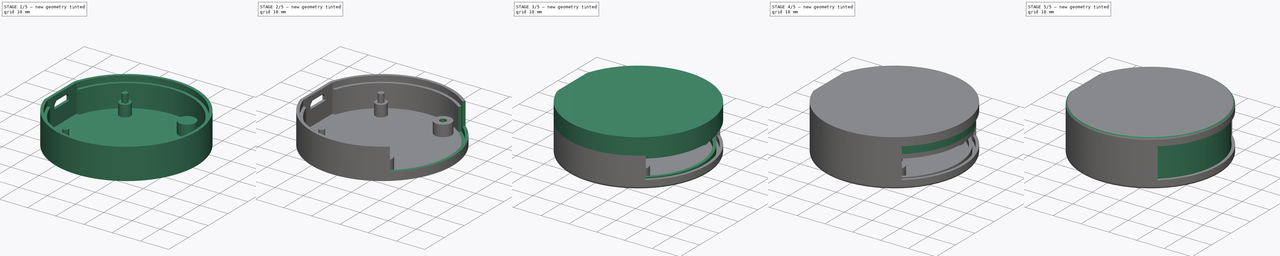
[diagram: build sequence overview — one tinted view per stage of 5, left to right]
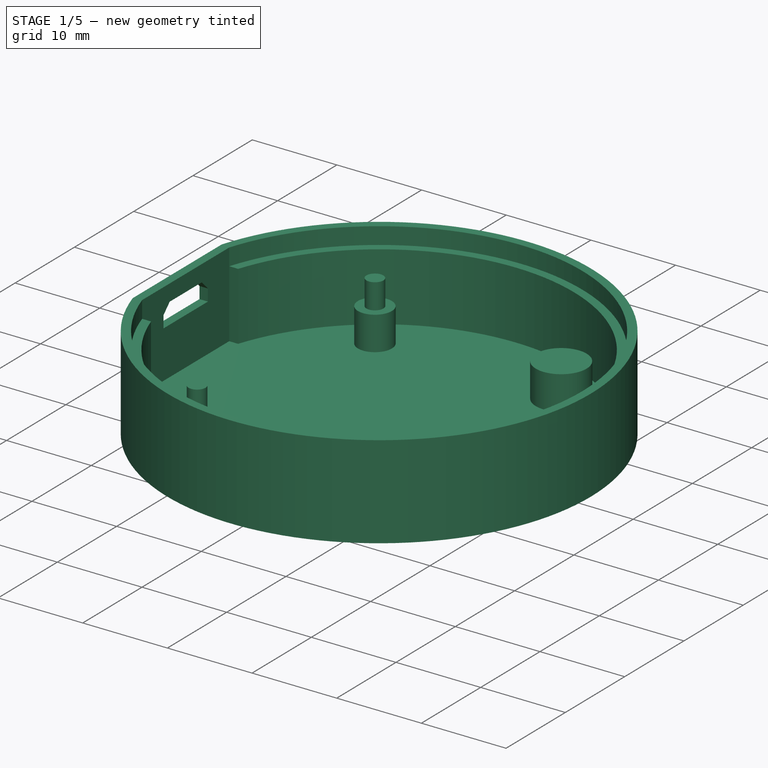
[diagram: stage 1 of 5 — iso view after this stage's code; geometry added in this stage tinted green]
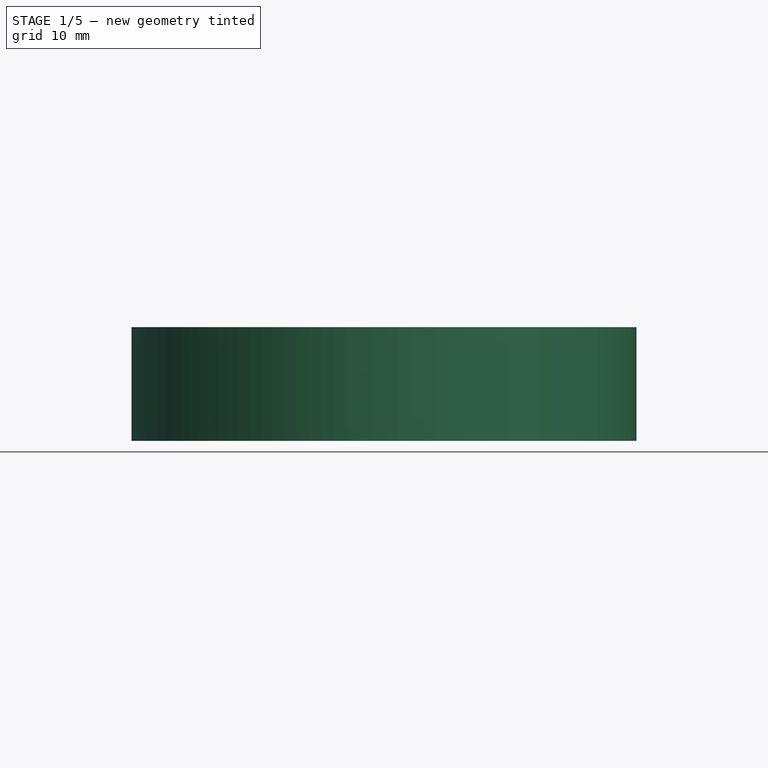
[diagram: stage 1 of 5 — front view after this stage's code; geometry added in this stage tinted green]
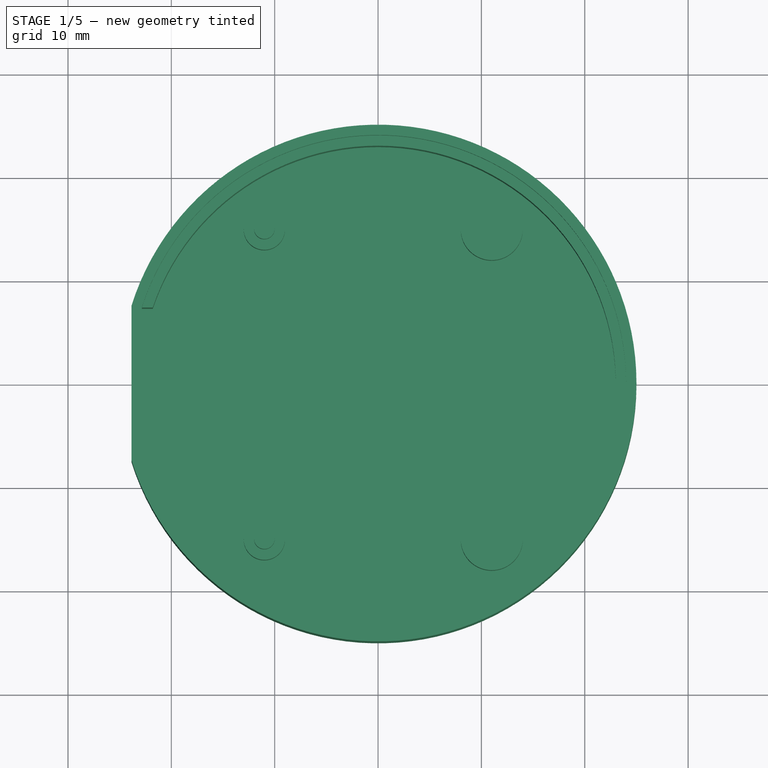
[diagram: stage 1 of 5 — top view after this stage's code; geometry added in this stage tinted green]
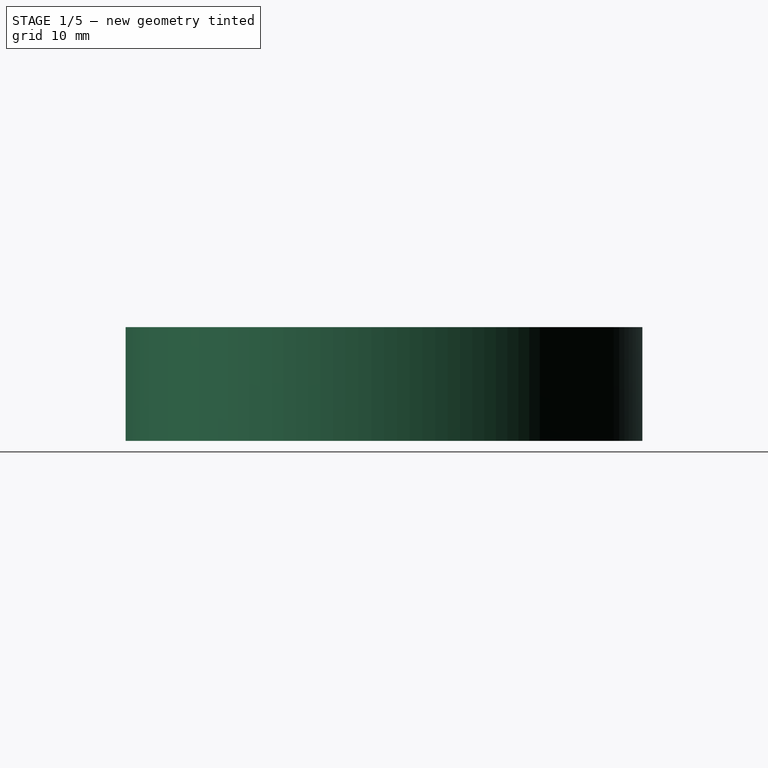
[diagram: stage 1 of 5 — right view after this stage's code; geometry added in this stage tinted green]
FCSTD DOCUMENT  (FreeCAD 0.16R6710 (Git))
Label: enclosure_v2
License: All rights reserved
LicenseURL: http://en.wikipedia.org/wiki/All_rights_reserved
objects: Sketcher::SketchObject×25, PartDesign::Pad×17, PartDesign::Pocket×8, PartDesign::Fillet×4, App::DocumentObjectGroup×3, Part::Thickness×2, App::VRMLObject×1
note: 81 computed .brp shape members not serialized (recipe doc carries the construction recipe); baked Part::Feature solids carry a one-line shape summary decoded from their .brp

FEATURE [Sketcher::SketchObject] Sketch
  sketch-geometry (2):
    g0: LineSegment StartX=-23.8485 StartY=7.5 StartZ=0 EndX=-23.8485 EndY=-7.5 EndZ=0
    g1: ArcOfCircle CenterX=0 CenterY=0 CenterZ=0 NormalX=0 NormalY=0 NormalZ=1 Radius=25 StartAngle=3.44629 EndAngle=9.12009
  constraints (6):
    c: DistanceY(g0,g0) = 15  'FlatWidth'
    c: Symmetric(g0,g0,g-1)
    c: Coincident(g1,g-1)
    c: Coincident(g0,g1)
    c: Coincident(g0,g1)
    c: Radius(g1) = 25  'Radius'
FEATURE [PartDesign::Pad] Pad
  Length = 10
  Length2 = 1
  Sketch = -> Sketch
  Type = 4
FEATURE [Part::Thickness] Thickness
  Faces = -> Pad [Face4]
  Intersection = false
  Join = 0
  Mode = 0
  SelfIntersection = false
  Value = -1
FEATURE [Sketcher::SketchObject] Sketch001
  ExternalGeometry = -> [Thickness]
  Support = -> Thickness [Face7]
  expr: Constraints[5] = Sketch.Constraints.Radius - 1 - 1
  sketch-geometry (4):
    g0: ArcOfCircle CenterX=0 CenterY=0 CenterZ=0 NormalX=0 NormalY=0 NormalZ=1 Radius=23 StartAngle=3.46663 EndAngle=9.09974
    g1: LineSegment StartX=-21.7957 StartY=7.34486 StartZ=0 EndX=-22.8485 EndY=7.34486 EndZ=0
    g2: LineSegment StartX=-21.7957 StartY=-7.34486 StartZ=0 EndX=-22.8485 EndY=-7.34486 EndZ=0
    g3: ArcOfCircle CenterX=0 CenterY=0 CenterZ=0 NormalX=0 NormalY=0 NormalZ=1 Radius=24 StartAngle=3.45262 EndAngle=9.11375
  constraints (11):
    c: Coincident(g0,g-1)
    c: Coincident(g1,g0)
    c: Coincident(g2,g0)
    c: Horizontal(g1)
    c: Horizontal(g2)
    c: Radius(g0) = 23
    c: Coincident(g3,g-1)
    c: Coincident(g3,g1)
    c: Coincident(g3,g2)
    c: Coincident(g1,g-3)
    c: PointOnObject(g-3,g2)
FEATURE [PartDesign::Pad] Pad001
  Length = 8
  Length2 = 100
  Sketch = -> Sketch001
  Type = 0
FEATURE [Sketcher::SketchObject] Sketch002
  Support = -> Pad001 [Face8]
  sketch-geometry (8):
    g0: Circle CenterX=11 CenterY=15 CenterZ=0 NormalX=0 NormalY=0 NormalZ=1 Radius=3
    g1: Circle CenterX=-11 CenterY=15 CenterZ=0 NormalX=0 NormalY=0 NormalZ=1 Radius=2
    g2: Circle CenterX=-11 CenterY=-15 CenterZ=0 NormalX=0 NormalY=0 NormalZ=1 Radius=2
    g3: Circle CenterX=11 CenterY=-15 CenterZ=0 NormalX=0 NormalY=0 NormalZ=1 Radius=3
    g4: LineSegment [constr] StartX=11 StartY=15 StartZ=0 EndX=11 EndY=-15 EndZ=0
    g5: LineSegment [constr] StartX=11 StartY=-15 StartZ=0 EndX=-11 EndY=-15 EndZ=0
    g6: LineSegment [constr] StartX=-11 StartY=-15 StartZ=0 EndX=-11 EndY=15 EndZ=0
    g7: LineSegment [constr] StartX=-11 StartY=15 StartZ=0 EndX=11 EndY=15 EndZ=0
  constraints (20):
    c: Coincident(g4,g0)
    c: Coincident(g4,g3)
    c: Coincident(g5,g3)
    c: Coincident(g5,g2)
    c: Horizontal(g5)
    c: Coincident(g6,g2)
    c: Coincident(g6,g1)
    c: Vertical(g6)
    c: Coincident(g7,g1)
    c: Coincident(g7,g0)
    c: Horizontal(g7)
    c: Vertical(g4)
    c: Symmetric(g1,g2,g-1)
    c: Symmetric(g1,g0,g-2)
    c: DistanceX(g7,g7) = 22
    c: DistanceY(g4,g4) = 30
    c: Equal(g3,g0)
    c: Radius(g2) = 2
    c: Equal(g2,g1)
    c: Radius(g3) = 3
FEATURE [PartDesign::Pad] Pad002
  Length = 4
  Length2 = 100
  Sketch = -> Sketch002
  Type = 0
FEATURE [Sketcher::SketchObject] Sketch003
  ExternalGeometry = -> [Pad002]
  Placement = pos=(0,0,4) rot=(0,0,1;0rad)
  Support = -> Pad002 [Face19]
  sketch-geometry (2):
    g0: Circle CenterX=-11 CenterY=-15 CenterZ=0 NormalX=0 NormalY=0 NormalZ=1 Radius=1
    g1: Circle CenterX=-11 CenterY=15 CenterZ=0 NormalX=0 NormalY=0 NormalZ=1 Radius=1
  constraints (4):
    c: Coincident(g0,g-5)
    c: Radius(g0) = 1
    c: Equal(g0,g1)
    c: Coincident(g1,g-4)
FEATURE [PartDesign::Pad] Pad003
  Length = 3
  Length2 = 100
  Sketch = -> Sketch003
  Type = 0
FEATURE [Sketcher::SketchObject] Sketch004
  Placement = pos=(-23.8485,2e-12,0) rot=(-0.57735,0.57735,0.57735;4.18879rad)
  Support = -> Pad003 [Face1]
  expr: Constraints[17] = 4 + 1.6 + (2.45 - 1.85) / 2
  expr: Constraints[31] = Sketch004.Constraints.OffsetUSBOutline
  expr: Constraints[30] = Sketch004.Constraints.OffsetUSBOutline
  expr: Constraints[29] = Sketch004.Constraints.OffsetUSBOutline
  sketch-geometry (12):
    g0: LineSegment [constr] StartX=-3.45 StartY=5.9 StartZ=0 EndX=3.45 EndY=5.9 EndZ=0
    g1: LineSegment [constr] StartX=3.45 StartY=5.9 StartZ=0 EndX=3.45 EndY=7 EndZ=0
    g2: LineSegment [constr] StartX=3.45 StartY=7 StartZ=0 EndX=2.7 EndY=7.75 EndZ=0
    g3: LineSegment [constr] StartX=2.7 StartY=7.75 StartZ=0 EndX=-2.7 EndY=7.75 EndZ=0
    g4: LineSegment [constr] StartX=-2.7 StartY=7.75 StartZ=0 EndX=-3.45 EndY=7 EndZ=0
    g5: LineSegment [constr] StartX=-3.45 StartY=7 StartZ=0 EndX=-3.45 EndY=5.9 EndZ=0
    g6: LineSegment StartX=-3.75 StartY=5.6 StartZ=0 EndX=3.75 EndY=5.6 EndZ=0
    g7: LineSegment StartX=3.75 StartY=5.6 StartZ=0 EndX=3.75 EndY=7 EndZ=0
    g8: LineSegment StartX=3.75 StartY=7 StartZ=0 EndX=2.7 EndY=8.05 EndZ=0
    g9: LineSegment StartX=2.7 StartY=8.05 StartZ=0 EndX=-2.7 EndY=8.05 EndZ=0
    g10: LineSegment StartX=-2.7 StartY=8.05 StartZ=0 EndX=-3.75 EndY=7 EndZ=0
    g11: LineSegment StartX=-3.75 StartY=7 StartZ=0 EndX=-3.75 EndY=5.6 EndZ=0
  constraints (36):
    c: Horizontal(g0)
    c: Coincident(g0,g1)
    c: Coincident(g1,g2)
    c: Coincident(g2,g3)
    c: Horizontal(g3)
    c: Coincident(g3,g4)
    c: Coincident(g4,g5)
    c: Coincident(g5,g0)
    c: Vertical(g5)
    c: Vertical(g1)
    c: Equal(g5,g1)
    c: Equal(g4,g2)
    c: Angle(g4,g3) = 2.35619
    c: DistanceX(g0,g0) = 6.9
    c: DistanceY(g5,g5) = 1.1
    c: DistanceX(g3,g3) = 5.4
    c: Symmetric(g0,g0,g-2)
    c: DistanceY(g-1,g0) = 5.9
    c: Horizontal(g6)
    c: Coincident(g6,g7)
    c: Vertical(g7)
    c: Coincident(g7,g8)
    c: Coincident(g8,g9)
    c: Horizontal(g9)
    c: Coincident(g9,g10)
    c: Coincident(g10,g11)
    c: Coincident(g11,g6)
    c: Vertical(g11)
    c: DistanceX(g10,g4) = 0.3  'OffsetUSBOutline'
    c: DistanceX(g1,g7) = 0.3
    c: DistanceY(g6,g0) = 0.3
    c: DistanceY(g2,g8) = 0.3
    c: Angle(g10,g9) = 2.35619
    c: Equal(g10,g8)
    c: Angle(g9,g8) = 2.35619
    c: DistanceY(g11,g11) = 1.4
FEATURE [PartDesign::Pocket] Pocket
  Length = 0
  Sketch = -> Sketch004
  Type = 3
  UpToFace = -> Pad003 [Face5]
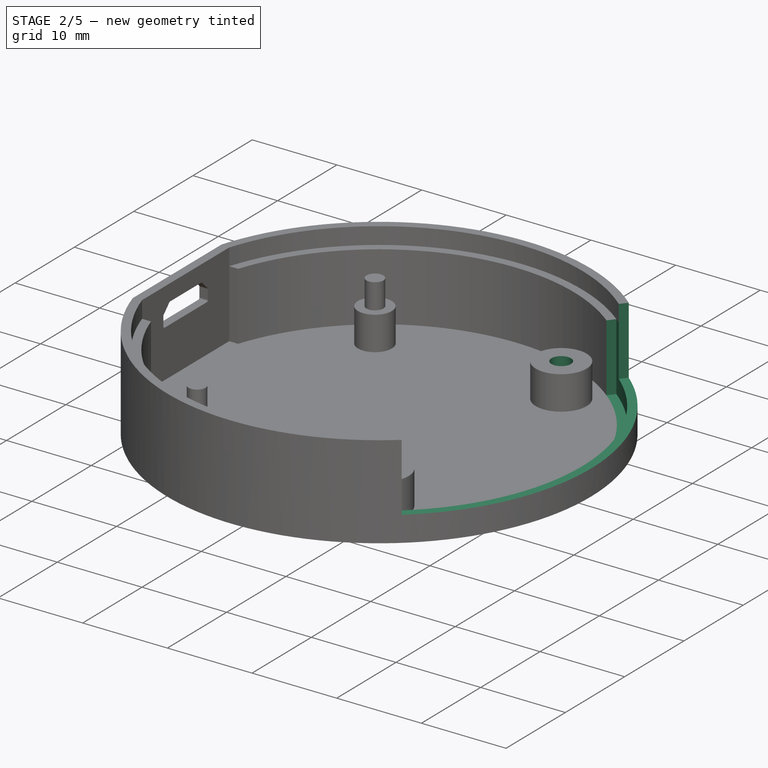
[diagram: stage 2 of 5 — iso view after this stage's code; geometry added in this stage tinted green]
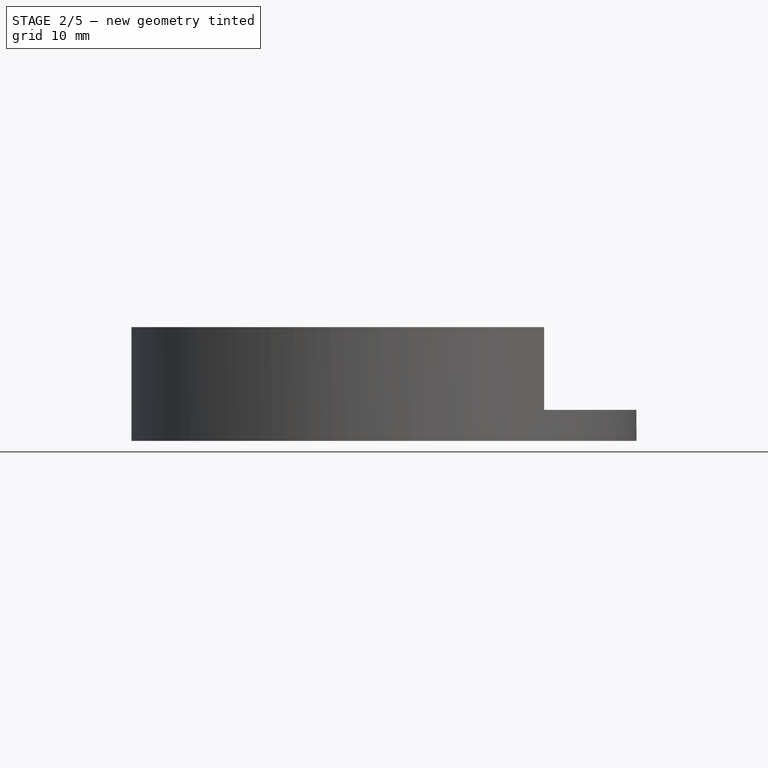
[diagram: stage 2 of 5 — front view after this stage's code; geometry added in this stage tinted green]
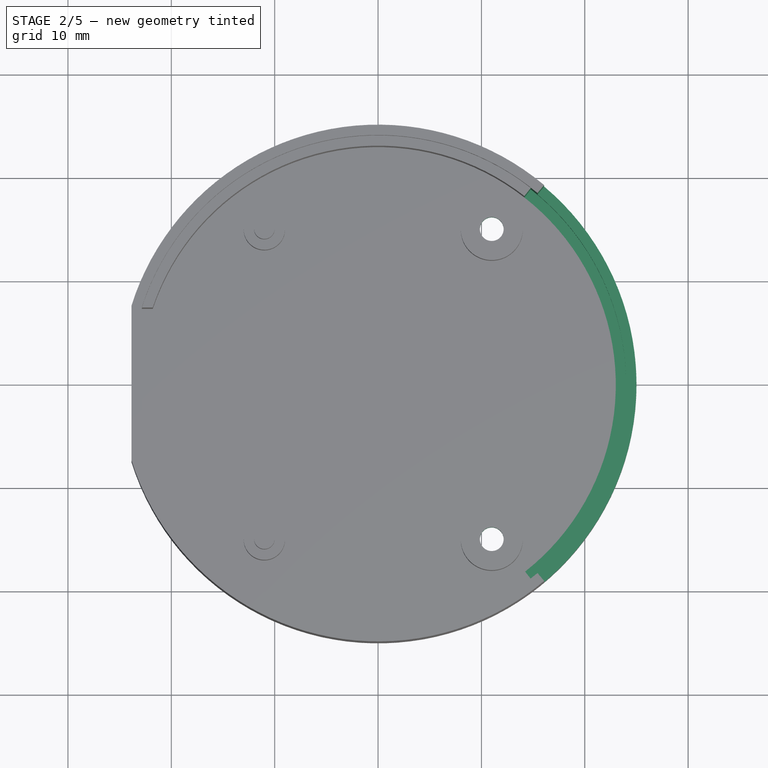
[diagram: stage 2 of 5 — top view after this stage's code; geometry added in this stage tinted green]
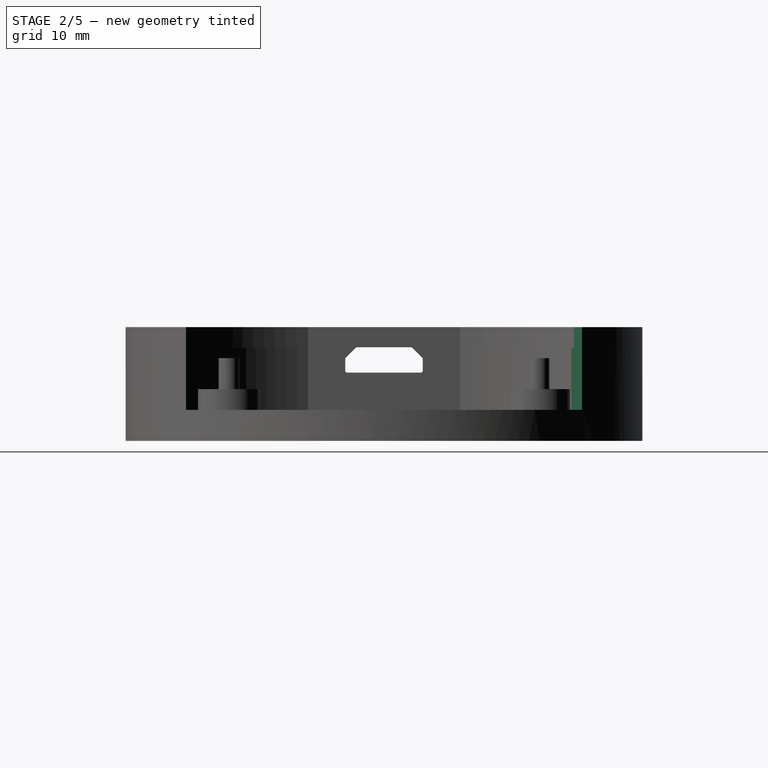
[diagram: stage 2 of 5 — right view after this stage's code; geometry added in this stage tinted green]
FEATURE [PartDesign::Fillet] Fillet
  Base = -> Pocket [Edge15,Edge25]
  Radius = 0.2
FEATURE [PartDesign::Fillet] Fillet001
  Base = -> Fillet [Edge14,Edge19,Edge23,Edge27]
  Radius = 0.2
FEATURE [Sketcher::SketchObject] Sketch009
  ExternalGeometry = -> [Fillet001]
  Placement = pos=(0,0,4) rot=(0,0,1;0rad)
  Support = -> Fillet001 [Face30]
  sketch-geometry (2):
    g0: Circle CenterX=11 CenterY=-15 CenterZ=0 NormalX=0 NormalY=0 NormalZ=1 Radius=1.15
    g1: Circle CenterX=11 CenterY=15 CenterZ=0 NormalX=0 NormalY=0 NormalZ=1 Radius=1.15
  constraints (4):
    c: Coincident(g1,g-3)
    c: Radius(g0) = 1.15
    c: Equal(g0,g1)
    c: Coincident(g0,g-4)
FEATURE [PartDesign::Pocket] Pocket001
  Length = 0
  Sketch = -> Sketch009
  Type = 3
  UpToFace = -> Fillet001 [Face15]
FEATURE [Sketcher::SketchObject] Sketch010
  ExternalGeometry = -> [Pocket001]
  Placement = pos=(0,0,-1) rot=(1,0,0;3.14159rad)
  Support = -> Pocket001 [Face15]
  sketch-geometry (2):
    g0: Circle CenterX=11 CenterY=-15 CenterZ=0 NormalX=0 NormalY=0 NormalZ=1 Radius=2
    g1: Circle CenterX=11 CenterY=15 CenterZ=0 NormalX=0 NormalY=0 NormalZ=1 Radius=2
  constraints (4):
    c: Coincident(g0,g-3)
    c: Coincident(g1,g-4)
    c: Radius(g1) = 2
    c: Equal(g1,g0)
FEATURE [PartDesign::Pocket] Pocket002
  Length = 3
  Sketch = -> Sketch010
  Type = 0
FEATURE [Sketcher::SketchObject] Sketch011
  Placement = pos=(0,0,13) rot=(1,0,0;3.14159rad)
  Support = -> Pad008 [Face26]
  expr: Constraints[2] = 22 / 2
  expr: Constraints[70] = 4.2 + 2
  sketch-geometry (34):
    g0: GeomPoint [constr] X=11 Y=15 Z=0
    g1: GeomPoint [constr] X=11 Y=-15 Z=0
    g2: LineSegment StartX=13.1 StartY=16.2124 StartZ=0 EndX=11 EndY=17.4249 EndZ=0
    g3: LineSegment [constr] StartX=11 StartY=17.4249 StartZ=0 EndX=8.9 EndY=16.2124 EndZ=0
    g4: LineSegment [constr] StartX=8.9 StartY=16.2124 StartZ=0 EndX=8.9 EndY=13.7876 EndZ=0
    g5: LineSegment [constr] StartX=8.9 StartY=13.7876 StartZ=0 EndX=11 EndY=12.5751 EndZ=0
    g6: LineSegment StartX=11 StartY=12.5751 StartZ=0 EndX=13.1 EndY=13.7876 EndZ=0
    g7: LineSegment StartX=13.1 StartY=13.7876 StartZ=0 EndX=13.1 EndY=16.2124 EndZ=0
    g8: Circle [constr] CenterX=11 CenterY=15 CenterZ=0 NormalX=0 NormalY=0 NormalZ=1 Radius=2.42487
    g9: LineSegment StartX=13.1 StartY=-13.7876 StartZ=0 EndX=11 EndY=-12.5751 EndZ=0
    g10: LineSegment [constr] StartX=11 StartY=-12.5751 StartZ=0 EndX=8.9 EndY=-13.7876 EndZ=0
    g11: LineSegment [constr] StartX=8.9 StartY=-13.7876 StartZ=0 EndX=8.9 EndY=-16.2124 EndZ=0
    g12: LineSegment [constr] StartX=8.9 StartY=-16.2124 StartZ=0 EndX=11 EndY=-17.4249 EndZ=0
    g13: LineSegment StartX=11 StartY=-17.4249 StartZ=0 EndX=13.1 EndY=-16.2124 EndZ=0
    g14: LineSegment StartX=13.1 StartY=-16.2124 StartZ=0 EndX=13.1 EndY=-13.7876 EndZ=0
    g15: Circle [constr] CenterX=11 CenterY=-15 CenterZ=0 NormalX=0 NormalY=0 NormalZ=1 Radius=2.42487
    g16: LineSegment StartX=14.1 StartY=11.9 StartZ=0 EndX=14.1 EndY=18.1 EndZ=0
    g17: LineSegment StartX=14.1 StartY=18.1 StartZ=0 EndX=7.9 EndY=18.1 EndZ=0
    g18: LineSegment [constr] StartX=7.9 StartY=18.1 StartZ=0 EndX=7.9 EndY=11.9 EndZ=0
    g19: LineSegment StartX=7.9 StartY=11.9 StartZ=0 EndX=14.1 EndY=11.9 EndZ=0
    g20: Circle [constr] CenterX=11 CenterY=15 CenterZ=0 NormalX=0 NormalY=0 NormalZ=1 Radius=4.38406
    g21: LineSegment StartX=14.1 StartY=-11.9 StartZ=0 EndX=7.9 EndY=-11.9 EndZ=0
    g22: LineSegment [constr] StartX=7.9 StartY=-11.9 StartZ=0 EndX=7.9 EndY=-18.1 EndZ=0
    g23: LineSegment StartX=7.9 StartY=-18.1 StartZ=0 EndX=14.1 EndY=-18.1 EndZ=0
    g24: LineSegment StartX=14.1 StartY=-18.1 StartZ=0 EndX=14.1 EndY=-11.9 EndZ=0
    g25: Circle [constr] CenterX=11 CenterY=-15 CenterZ=0 NormalX=0 NormalY=0 NormalZ=1 Radius=4.38406
    g26: LineSegment StartX=7.9 StartY=17.4249 StartZ=0 EndX=11 EndY=17.4249 EndZ=0
    g27: LineSegment StartX=7.9 StartY=12.5751 StartZ=0 EndX=11 EndY=12.5751 EndZ=0
    g28: LineSegment StartX=7.9 StartY=12.5751 StartZ=0 EndX=7.9 EndY=11.9 EndZ=0
    g29: LineSegment StartX=7.9 StartY=17.4249 StartZ=0 EndX=7.9 EndY=18.1 EndZ=0
    g30: LineSegment StartX=7.9 StartY=-12.5751 StartZ=0 EndX=11 EndY=-12.5751 EndZ=0
    g31: LineSegment StartX=7.9 StartY=-17.4249 StartZ=0 EndX=11 EndY=-17.4249 EndZ=0
    g32: LineSegment StartX=7.9 StartY=-17.4249 StartZ=0 EndX=7.9 EndY=-18.1 EndZ=0
    g33: LineSegment StartX=7.9 StartY=-11.9 StartZ=0 EndX=7.9 EndY=-12.5751 EndZ=0
  constraints (83):
    c: Symmetric(g0,g1,g-1)
    c: DistanceY(g1,g0) = 30
    c: DistanceX(g-1,g0) = 11
    c: Coincident(g2,g3)
    c: Coincident(g3,g4)
    c: Coincident(g4,g5)
    c: Coincident(g5,g6)
    c: Coincident(g6,g7)
    c: Coincident(g7,g2)
    c: Equal(g2, g3-g7) x5
    c: PointOnObject(g2,g8)
    c: PointOnObject(g3,g8)
    c: PointOnObject(g4,g8)
    c: PointOnObject(g5,g8)
    c: PointOnObject(g6,g8)
    c: PointOnObject(g7,g8)
    c: Coincident(g8,g0)
    c: Coincident(g9,g10)
    c: Coincident(g10,g11)
    c: Coincident(g11,g12)
    c: Coincident(g12,g13)
    c: Coincident(g13,g14)
    c: Coincident(g14,g9)
    c: Equal(g9, g10-g14) x5
    c: PointOnObject(g9,g15)
    c: PointOnObject(g10,g15)
    c: PointOnObject(g11,g15)
    c: PointOnObject(g12,g15)
    c: PointOnObject(g13,g15)
    c: PointOnObject(g14,g15)
    c: Coincident(g15,g1)
    c: Vertical(g14)
    c: Vertical(g7)
    c: DistanceX(g4,g6) = 4.2
    c: DistanceX(g10,g9) = 4.2
    c: Coincident(g16,g17)
    c: Coincident(g17,g18)
    c: Coincident(g18,g19)
    c: Coincident(g19,g16)
    c: Equal(g16,g17)
    c: Equal(g16,g18)
    c: Equal(g16,g19)
    c: PointOnObject(g16,g20)
    c: PointOnObject(g17,g20)
    c: PointOnObject(g18,g20)
    c: PointOnObject(g19,g20)
    c: Coincident(g20,g0)
    c: Coincident(g21,g22)
    c: Coincident(g22,g23)
    c: Coincident(g23,g24)
    c: Coincident(g24,g21)
    c: Equal(g21,g22)
    c: Equal(g21,g23)
    c: Equal(g21,g24)
    c: PointOnObject(g21,g25)
    c: PointOnObject(g22,g25)
    c: PointOnObject(g23,g25)
    c: PointOnObject(g24,g25)
    c: Coincident(g25,g1)
    c: Vertical(g22)
    c: Vertical(g18)
    c: Equal(g19,g21)
    c: DistanceX(g19,g19) = 6.2
    c: PointOnObject(g26,g18)
    c: Coincident(g26,g2)
    c: Horizontal(g26)
    c: PointOnObject(g27,g18)
    c: Coincident(g27,g5)
    c: Horizontal(g27)
    c: Coincident(g28,g27)
    c: Coincident(g28,g18)
    c: Coincident(g29,g26)
    c: Coincident(g29,g17)
    c: PointOnObject(g30,g22)
    c: Coincident(g30,g9)
    c: PointOnObject(g31,g22)
    c: Coincident(g31,g12)
    c: Coincident(g32,g31)
    c: Coincident(g32,g22)
    c: Coincident(g33,g21)
    c: Coincident(g33,g30)
    c: Horizontal(g30)
    c: Horizontal(g31)
FEATURE [App::VRMLObject] irbridge
  Placement = pos=(-50,50,4.8) rot=(0,0,1;0rad)
FEATURE [Sketcher::SketchObject] Sketch015
  ExternalGeometry = -> [Pocket002]
  Placement = pos=(0,0,10) rot=(0,0,1;0rad)
  Support = -> Pocket002 [Face16]
  sketch-geometry (8):
    g0: LineSegment [constr] StartX=0 StartY=0 StartZ=0 EndX=16.0697 EndY=19.1511 EndZ=0
    g1: LineSegment [constr] StartX=0 StartY=0 StartZ=0 EndX=16.0697 EndY=-19.1511 EndZ=0
    g2: ArcOfCircle CenterX=0 CenterY=0 CenterZ=0 NormalX=0 NormalY=0 NormalZ=1 Radius=25 StartAngle=5.41052 EndAngle=7.15585
    g3: GeomPoint [constr] X=15.4269 Y=18.3851 Z=0
    g4: GeomPoint [constr] X=15.4269 Y=-18.3851 Z=0
    g5: LineSegment StartX=15.4269 StartY=-18.3851 StartZ=0 EndX=16.0697 EndY=-19.1511 EndZ=0
    g6: LineSegment StartX=15.4269 StartY=18.3851 StartZ=0 EndX=16.0697 EndY=19.1511 EndZ=0
    g7: ArcOfCircle CenterX=0 CenterY=0 CenterZ=0 NormalX=0 NormalY=0 NormalZ=1 Radius=24 StartAngle=5.41052 EndAngle=7.15585
  constraints (19):
    c: Coincident(g0,g-1)
    c: PointOnObject(g0,g-3)
    c: Coincident(g1,g-1)
    c: Symmetric(g1,g0,g-1)
    c: Angle(g-1,g0) = 0.872665
    c: Coincident(g2,g-1)
    c: Coincident(g2,g0)
    c: Coincident(g2,g1)
    c: PointOnObject(g3,g0)
    c: PointOnObject(g3,g-4)
    c: PointOnObject(g4,g1)
    c: PointOnObject(g4,g-4)
    c: Coincident(g5,g4)
    c: Coincident(g5,g1)
    c: Coincident(g6,g3)
    c: Coincident(g6,g0)
    c: Coincident(g7,g-1)
    c: Coincident(g7,g4)
    c: Coincident(g7,g3)
FEATURE [PartDesign::Pocket] Pocket003
  Length = 8
  Sketch = -> Sketch015
  Type = 0
FEATURE [Sketcher::SketchObject] Sketch016
  ExternalGeometry = -> [Pocket003]
  Placement = pos=(0,0,8) rot=(0,0,1;0rad)
  Support = -> Pocket003 [Face31]
  sketch-geometry (8):
    g0: LineSegment [constr] StartX=0 StartY=0 StartZ=0 EndX=14.7759 EndY=18.9123 EndZ=0
    g1: LineSegment [constr] StartX=0 StartY=0 StartZ=0 EndX=14.7759 EndY=-18.9123 EndZ=0
    g2: GeomPoint [constr] X=14.1602 Y=18.1242 Z=0
    g3: GeomPoint [constr] X=14.1602 Y=-18.1242 Z=0
    g4: LineSegment StartX=14.1602 StartY=-18.1242 StartZ=0 EndX=14.7759 EndY=-18.9123 EndZ=0
    g5: LineSegment StartX=14.1602 StartY=18.1242 StartZ=0 EndX=14.7759 EndY=18.9123 EndZ=0
    g6: ArcOfCircle CenterX=0 CenterY=0 CenterZ=0 NormalX=0 NormalY=0 NormalZ=1 Radius=23 StartAngle=5.37561 EndAngle=7.19076
    g7: ArcOfCircle CenterX=0 CenterY=0 CenterZ=0 NormalX=0 NormalY=0 NormalZ=1 Radius=24 StartAngle=5.37561 EndAngle=7.19076
  constraints (19):
    c: Coincident(g0,g-1)
    c: PointOnObject(g0,g-4)
    c: Coincident(g1,g-1)
    c: Symmetric(g1,g0,g-1)
    c: Angle(g-1,g0) = 0.907571
    c: PointOnObject(g2,g0)
    c: PointOnObject(g2,g-3)
    c: PointOnObject(g3,g1)
    c: PointOnObject(g3,g-3)
    c: Coincident(g4,g3)
    c: Coincident(g4,g1)
    c: Coincident(g5,g2)
    c: Coincident(g5,g0)
    c: Coincident(g6,g-1)
    c: Coincident(g6,g2)
    c: Coincident(g6,g3)
    c: Coincident(g7,g-1)
    c: Coincident(g7,g1)
    c: Coincident(g7,g0)
FEATURE [PartDesign::Pocket] Pocket004
  Length = 8
  Sketch = -> Sketch016
  Type = 0
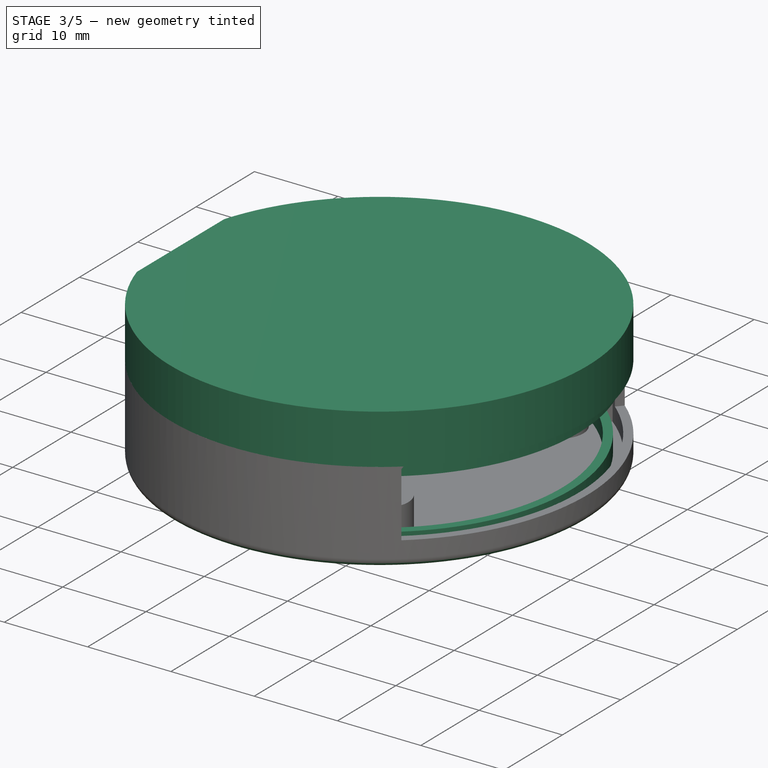
[diagram: stage 3 of 5 — iso view after this stage's code; geometry added in this stage tinted green]
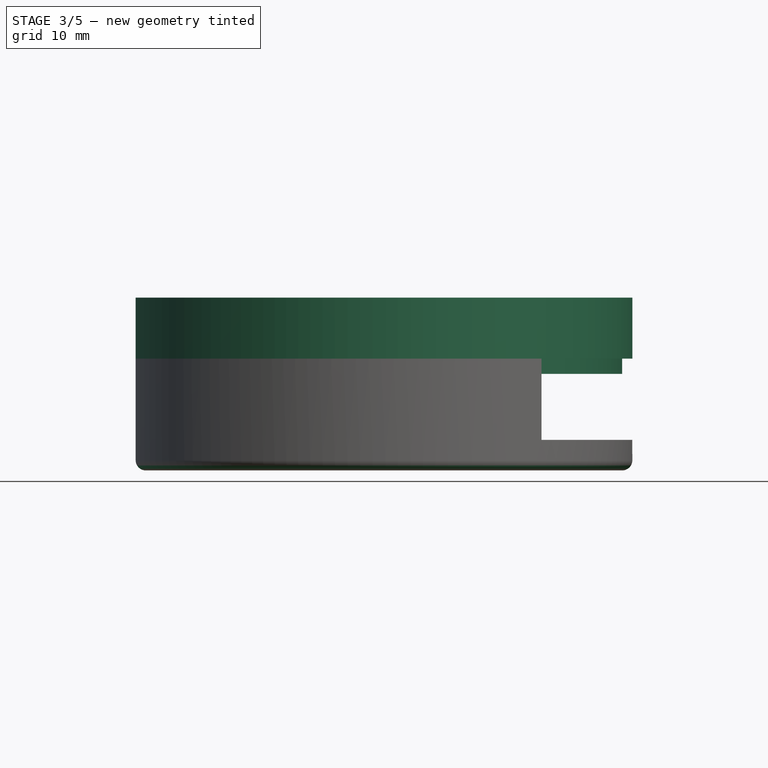
[diagram: stage 3 of 5 — front view after this stage's code; geometry added in this stage tinted green]
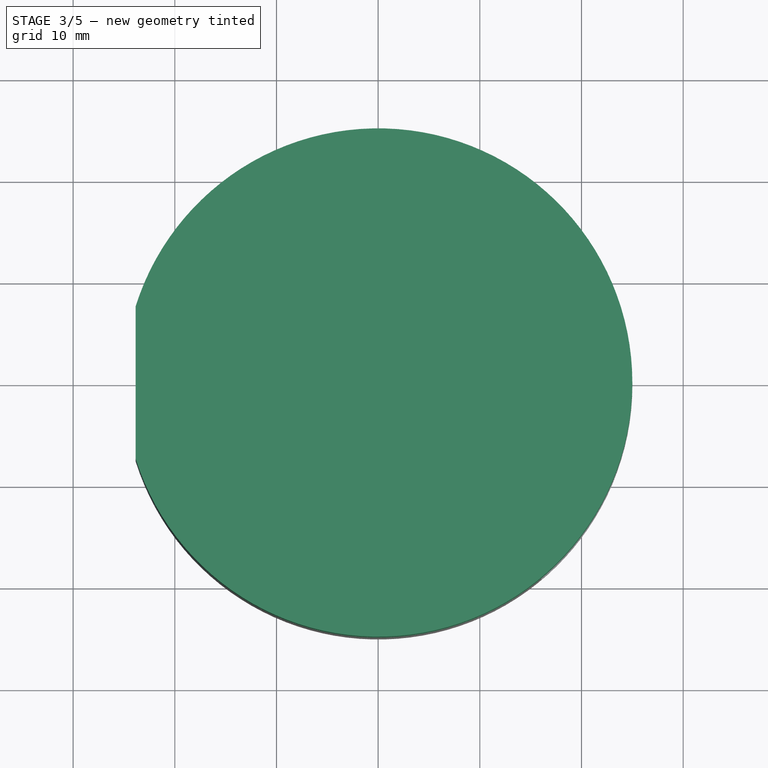
[diagram: stage 3 of 5 — top view after this stage's code; geometry added in this stage tinted green]
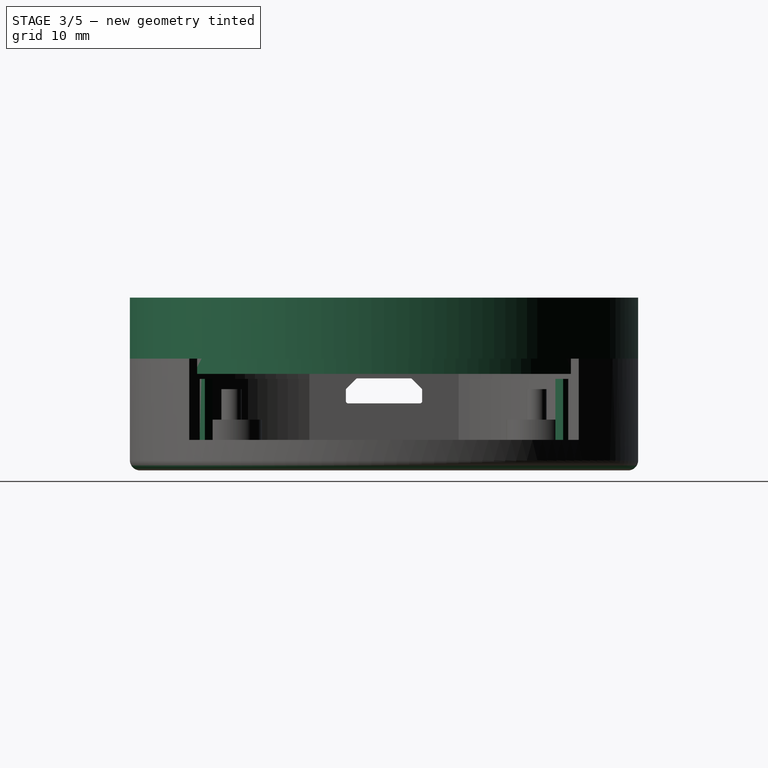
[diagram: stage 3 of 5 — right view after this stage's code; geometry added in this stage tinted green]
FEATURE [Sketcher::SketchObject] Sketch005
  Placement = pos=(0,0,15) rot=(0,0,1;0rad)
  sketch-geometry (2):
    g0: LineSegment StartX=-23.8485 StartY=7.5 StartZ=0 EndX=-23.8485 EndY=-7.5 EndZ=0
    g1: ArcOfCircle CenterX=0 CenterY=0 CenterZ=0 NormalX=0 NormalY=0 NormalZ=1 Radius=25 StartAngle=3.44629 EndAngle=9.12009
  constraints (6):
    c: DistanceY(g0,g0) = 15  'FlatWidth'
    c: Symmetric(g0,g0,g-1)
    c: Coincident(g1,g-1)
    c: Coincident(g0,g1)
    c: Coincident(g0,g1)
    c: Radius(g1) = 25  'Radius'
FEATURE [PartDesign::Pad] Pad004
  Length = 1
  Length2 = 5
  Placement = pos=(0,0,15) rot=(0,0,1;0rad)
  Sketch = -> Sketch005
  Type = 4
FEATURE [Part::Thickness] Thickness001
  Faces = -> Pad004 [Face3]
  Intersection = false
  Join = 0
  Mode = 0
  SelfIntersection = false
  Value = -1
FEATURE [Sketcher::SketchObject] Sketch006
  ExternalGeometry = -> [Thickness001]
  Placement = pos=(0,0,15) rot=(1,0,0;3.14159rad)
  Support = -> Thickness001 [Face7]
  expr: Constraints[10] = Sketch.Constraints.Radius - 1 - 1
  sketch-geometry (4):
    g0: ArcOfCircle CenterX=0 CenterY=0 CenterZ=0 NormalX=0 NormalY=0 NormalZ=1 Radius=24 StartAngle=3.45262 EndAngle=9.11375
    g1: ArcOfCircle CenterX=0 CenterY=0 CenterZ=0 NormalX=0 NormalY=0 NormalZ=1 Radius=23 StartAngle=3.46663 EndAngle=9.09974
    g2: LineSegment StartX=-22.8485 StartY=7.34486 StartZ=0 EndX=-21.7957 EndY=7.34486 EndZ=0
    g3: LineSegment StartX=-22.8485 StartY=-7.34486 StartZ=0 EndX=-21.7957 EndY=-7.34486 EndZ=0
  constraints (11):
    c: Coincident(g0,g-1)
    c: Coincident(g1,g-1)
    c: Coincident(g2,g0)
    c: Coincident(g2,g1)
    c: Coincident(g3,g0)
    c: Coincident(g3,g1)
    c: Horizontal(g2)
    c: Horizontal(g3)
    c: Coincident(g0,g-3)
    c: PointOnObject(g-3,g3)
    c: Radius(g1) = 23
FEATURE [PartDesign::Pad] Pad005
  Length = 6.5
  Length2 = 100
  Sketch = -> Sketch006
  Type = 0
FEATURE [Sketcher::SketchObject] Sketch007
  ExternalGeometry = -> [Pad005]
  Placement = pos=(0,0,15) rot=(1,0,0;3.14159rad)
  Support = -> Pad005 [Face7]
  sketch-geometry (4):
    g0: LineSegment StartX=-21.7957 StartY=7.34486 StartZ=0 EndX=-21.7957 EndY=-7.34486 EndZ=0
    g1: LineSegment StartX=-21.7957 StartY=7.34486 StartZ=0 EndX=-22.8485 EndY=7.34486 EndZ=0
    g2: LineSegment StartX=-22.8485 StartY=7.34486 StartZ=0 EndX=-22.8485 EndY=-7.34486 EndZ=0
    g3: LineSegment StartX=-22.8485 StartY=-7.34486 StartZ=0 EndX=-21.7957 EndY=-7.34486 EndZ=0
  constraints (8):
    c: Coincident(g0,g-3)
    c: Coincident(g0,g-5)
    c: Coincident(g1,g0)
    c: Coincident(g1,g-4)
    c: Coincident(g2,g1)
    c: Coincident(g2,g-5)
    c: Coincident(g3,g2)
    c: Coincident(g3,g0)
FEATURE [PartDesign::Pad] Pad006
  Length = 6
  Length2 = 100
  Sketch = -> Sketch007
  Type = 0
FEATURE [Sketcher::SketchObject] Sketch017
  ExternalGeometry = -> [Pocket004]
  Support = -> Pocket004 [Face26]
  sketch-geometry (6):
    g0: ArcOfCircle CenterX=0 CenterY=0 CenterZ=0 NormalX=0 NormalY=0 NormalZ=1 Radius=23 StartAngle=5.34071 EndAngle=7.22566
    g1: LineSegment [constr] StartX=0 StartY=0 StartZ=0 EndX=13.5191 EndY=18.6074 EndZ=0
    g2: LineSegment [constr] StartX=0 StartY=0 StartZ=0 EndX=13.5191 EndY=-18.6074 EndZ=0
    g3: ArcOfCircle CenterX=0 CenterY=0 CenterZ=0 NormalX=0 NormalY=0 NormalZ=1 Radius=22 StartAngle=5.34071 EndAngle=7.22566
    g4: LineSegment StartX=12.9313 StartY=17.7984 StartZ=0 EndX=13.5191 EndY=18.6074 EndZ=0
    g5: LineSegment StartX=12.9313 StartY=-17.7984 StartZ=0 EndX=13.5191 EndY=-18.6074 EndZ=0
  constraints (16):
    c: Coincident(g0,g-1)
    c: PointOnObject(g-3,g0)
    c: Coincident(g1,g-1)
    c: Coincident(g1,g0)
    c: Coincident(g2,g-1)
    c: Coincident(g2,g0)
    c: Symmetric(g0,g0,g-1)
    c: Angle(g-1,g1) = 0.942478
    c: Coincident(g3,g-1)
    c: PointOnObject(g3,g1)
    c: PointOnObject(g3,g2)
    c: Distance(g3,g0) = 1
    c: Coincident(g4,g3)
    c: Coincident(g4,g0)
    c: Coincident(g5,g3)
    c: Coincident(g5,g0)
FEATURE [PartDesign::Pad] Pad012
  Length = 2
  Length2 = 100
  Sketch = -> Sketch017
  Type = 0
FEATURE [Sketcher::SketchObject] Sketch018
  ExternalGeometry = -> [Pad012]
  Placement = pos=(0,0,2) rot=(0,0,1;0rad)
  Support = -> Pad012 [Face47]
  sketch-geometry (10):
    g0: LineSegment StartX=12.9313 StartY=17.7984 StartZ=0 EndX=13.5191 EndY=18.6074 EndZ=0
    g1: LineSegment StartX=12.9313 StartY=-17.7984 StartZ=0 EndX=13.5191 EndY=-18.6074 EndZ=0
    g2: LineSegment [constr] StartX=0 StartY=0 StartZ=0 EndX=15.4269 EndY=-18.3851 EndZ=0
    g3: LineSegment [constr] StartX=0 StartY=0 StartZ=0 EndX=15.4269 EndY=18.3851 EndZ=0
    g4: LineSegment StartX=14.1413 StartY=16.853 StartZ=0 EndX=14.7841 EndY=17.619 EndZ=0
    g5: LineSegment StartX=14.1413 StartY=-16.853 StartZ=0 EndX=14.7841 EndY=-17.619 EndZ=0
    g6: ArcOfCircle CenterX=0 CenterY=0 CenterZ=0 NormalX=0 NormalY=0 NormalZ=1 Radius=22 StartAngle=0.872665 EndAngle=0.942478
    g7: ArcOfCircle CenterX=0 CenterY=0 CenterZ=0 NormalX=0 NormalY=0 NormalZ=1 Radius=23 StartAngle=0.872665 EndAngle=0.942478
    g8: ArcOfCircle CenterX=0 CenterY=0 CenterZ=0 NormalX=0 NormalY=0 NormalZ=1 Radius=22 StartAngle=5.34071 EndAngle=5.41052
    g9: ArcOfCircle CenterX=0 CenterY=0 CenterZ=0 NormalX=0 NormalY=0 NormalZ=1 Radius=23 StartAngle=5.34071 EndAngle=5.41052
  constraints (28):
    c: Coincident(g0,g-7)
    c: Coincident(g1,g-6)
    c: Coincident(g2,g-1)
    c: Coincident(g2,g-5)
    c: Coincident(g3,g-1)
    c: Coincident(g3,g-4)
    c: PointOnObject(g4,g3)
    c: PointOnObject(g4,g3)
    c: PointOnObject(g4,g-3)
    c: PointOnObject(g5,g2)
    c: PointOnObject(g5,g2)
    c: PointOnObject(g5,g-3)
    c: PointOnObject(g5,g-8)
    c: Coincident(g1,g-8)
    c: PointOnObject(g4,g-8)
    c: Coincident(g0,g-8)
    c: Coincident(g6,g-1)
    c: Coincident(g6,g0)
    c: PointOnObject(g6,g3)
    c: Coincident(g7,g-1)
    c: Coincident(g7,g0)
    c: PointOnObject(g7,g3)
    c: Coincident(g8,g-1)
    c: Coincident(g8,g1)
    c: Coincident(g9,g-1)
    c: Coincident(g9,g1)
    c: PointOnObject(g9,g2)
    c: PointOnObject(g8,g2)
FEATURE [PartDesign::Pad] Pad013
  Length = 6
  Length2 = 100
  Sketch = -> Sketch018
  Type = 0
FEATURE [App::DocumentObjectGroup] Group001  label="Top"
  Group = -> [Thickness001,Pad005,Pad006,Pad007,Pad008,Pad017,Pad018,Pad019,Pocket005,Pocket006,Pad020,Pad021,Pocket007,Fillet002]
FEATURE [PartDesign::Fillet] Fillet003
  Base = -> Pad013 [Edge41,Edge14]
  Radius = 1
FEATURE [App::DocumentObjectGroup] Group  label="Bottom"
  Group = -> [Thickness,Pad001,Pad002,Pad003,Pocket,Fillet,Fillet001,Pocket001,Pocket002,Pocket003,Pocket004,Pad012,Pad013,Fillet003]
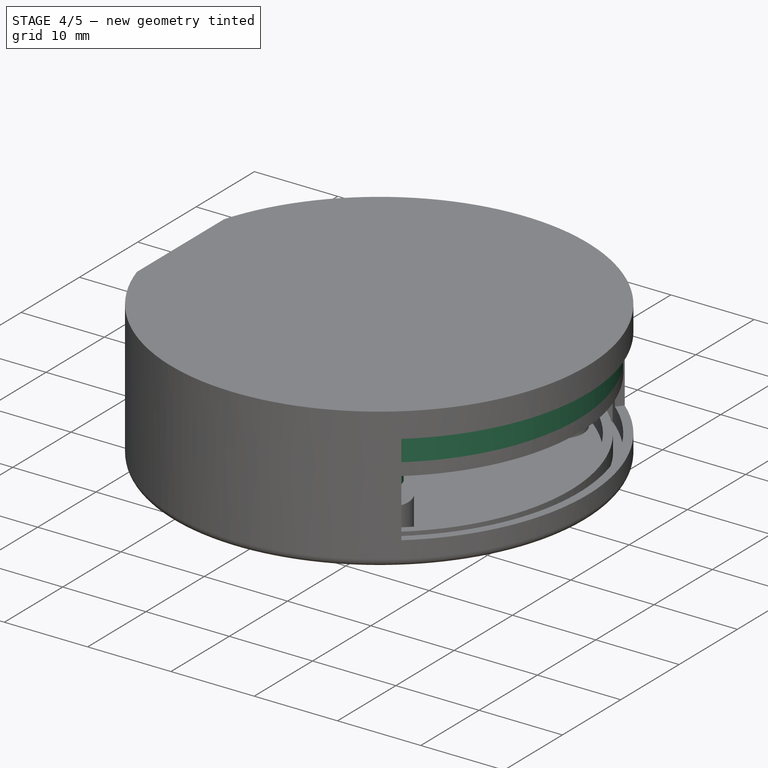
[diagram: stage 4 of 5 — iso view after this stage's code; geometry added in this stage tinted green]
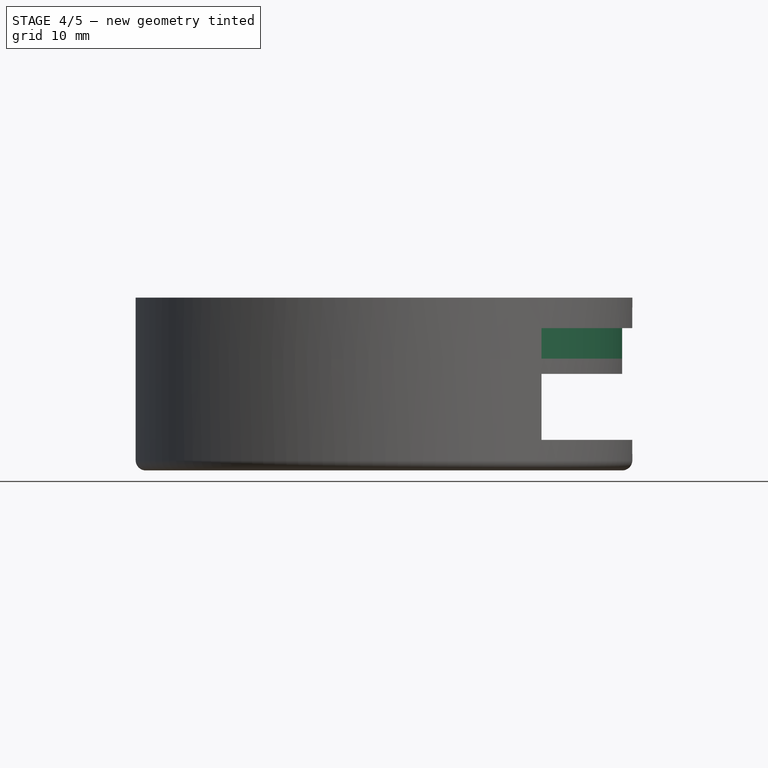
[diagram: stage 4 of 5 — front view after this stage's code; geometry added in this stage tinted green]
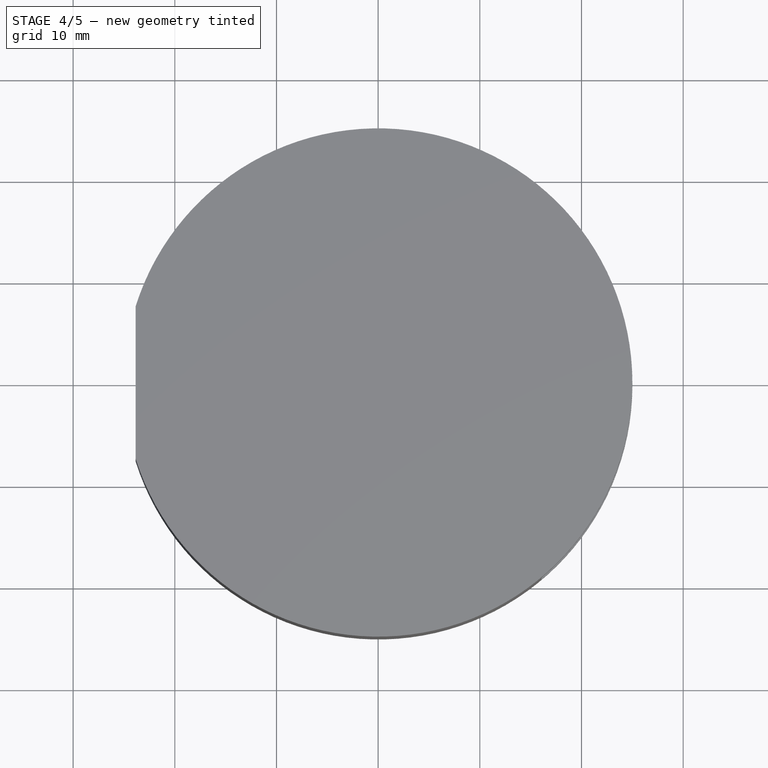
[diagram: stage 4 of 5 — top view after this stage's code; geometry added in this stage tinted green]
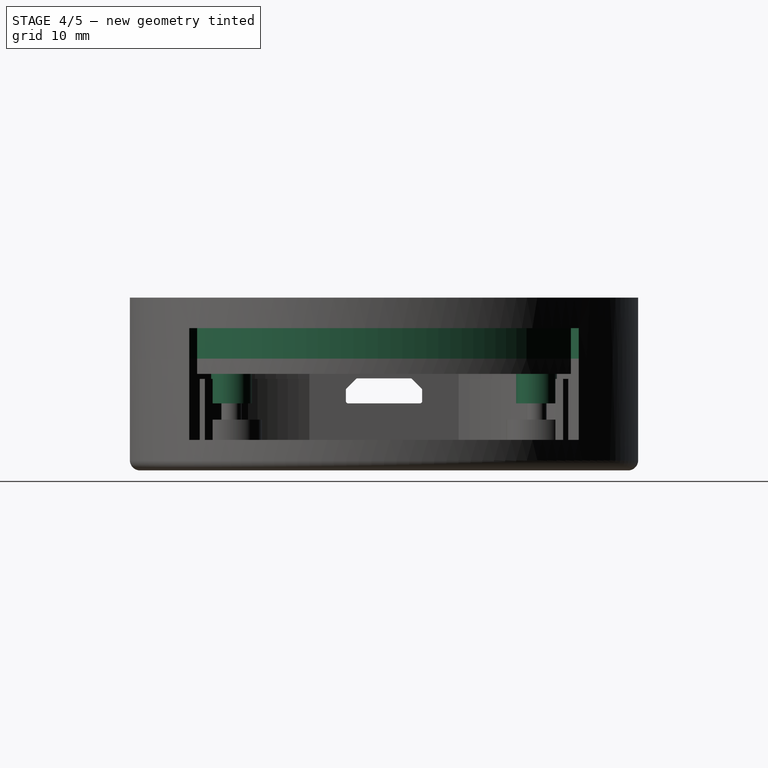
[diagram: stage 4 of 5 — right view after this stage's code; geometry added in this stage tinted green]
FEATURE [Sketcher::SketchObject] Sketch008
  Placement = pos=(0,0,15) rot=(1,0,0;3.14159rad)
  Support = -> Pad006 [Face13]
  sketch-geometry (12):
    g0: Circle CenterX=-11 CenterY=15 CenterZ=0 NormalX=0 NormalY=0 NormalZ=1 Radius=2
    g1: Circle [constr] CenterX=11 CenterY=15 CenterZ=0 NormalX=0 NormalY=0 NormalZ=1 Radius=2
    g2: Circle [constr] CenterX=11 CenterY=-15 CenterZ=0 NormalX=0 NormalY=0 NormalZ=1 Radius=2
    g3: Circle CenterX=-11 CenterY=-15 CenterZ=0 NormalX=0 NormalY=0 NormalZ=1 Radius=2
    g4: LineSegment [constr] StartX=11 StartY=15 StartZ=0 EndX=11 EndY=-15 EndZ=0
    g5: LineSegment [constr] StartX=11 StartY=-15 StartZ=0 EndX=-11 EndY=-15 EndZ=0
    g6: LineSegment [constr] StartX=-11 StartY=15 StartZ=0 EndX=11 EndY=15 EndZ=0
    g7: Circle CenterX=-11 CenterY=15 CenterZ=0 NormalX=0 NormalY=0 NormalZ=1 Radius=1.1
    g8: Circle [constr] CenterX=11 CenterY=15 CenterZ=0 NormalX=0 NormalY=0 NormalZ=1 Radius=1.1
    g9: Circle [constr] CenterX=11 CenterY=-15 CenterZ=0 NormalX=0 NormalY=0 NormalZ=1 Radius=1.1
    g10: Circle CenterX=-11 CenterY=-15 CenterZ=0 NormalX=0 NormalY=0 NormalZ=1 Radius=1.1
    g11: LineSegment [constr] StartX=-11 StartY=15 StartZ=0 EndX=-11 EndY=-15 EndZ=0
  constraints (28):
    c: Coincident(g4,g1)
    c: Coincident(g4,g2)
    c: Vertical(g4)
    c: Coincident(g5,g2)
    c: Coincident(g5,g3)
    c: Horizontal(g5)
    c: Coincident(g6,g0)
    c: Coincident(g6,g1)
    c: Horizontal(g6)
    c: Symmetric(g0,g1,g-2)
    c: Symmetric(g1,g2,g-1)
    c: DistanceX(g6,g6) = 22
    c: DistanceY(g4,g4) = 30
    c: Radius(g2) = 2
    c: Equal(g2,g1)
    c: Equal(g2,g0)
    c: Equal(g2,g3)
    c: Coincident(g7,g0)
    c: Coincident(g8,g1)
    c: Coincident(g9,g2)
    c: Coincident(g10,g3)
    c: Radius(g10) = 1.1
    c: Equal(g10,g7)
    c: Equal(g10,g8)
    c: Equal(g10,g9)
    c: Coincident(g11,g0)
    c: Coincident(g11,g3)
    c: Vertical(g11)
FEATURE [PartDesign::Pad] Pad007
  Length = 9.4
  Length2 = 100
  Sketch = -> Sketch008
  Type = 0
FEATURE [Sketcher::SketchObject] Sketch012
  Placement = pos=(0,0,15) rot=(1,0,0;3.14159rad)
  Support = -> Pad007 [Face13]
  expr: Constraints[31] = 4.2 + 2
  expr: Constraints[2] = 22 / 2
  sketch-geometry (14):
    g0: GeomPoint [constr] X=11 Y=15 Z=0
    g1: GeomPoint [constr] X=11 Y=-15 Z=0
    g2: LineSegment StartX=14.1 StartY=11.9 StartZ=0 EndX=14.1 EndY=18.1 EndZ=0
    g3: LineSegment StartX=14.1 StartY=18.1 StartZ=0 EndX=7.9 EndY=18.1 EndZ=0
    g4: LineSegment StartX=7.9 StartY=18.1 StartZ=0 EndX=7.9 EndY=11.9 EndZ=0
    g5: LineSegment StartX=7.9 StartY=11.9 StartZ=0 EndX=14.1 EndY=11.9 EndZ=0
    g6: Circle [constr] CenterX=11 CenterY=15 CenterZ=0 NormalX=0 NormalY=0 NormalZ=1 Radius=4.38406
    g7: Circle CenterX=11 CenterY=15 CenterZ=0 NormalX=0 NormalY=0 NormalZ=1 Radius=1.15
    g8: LineSegment StartX=14.1 StartY=-18.1 StartZ=0 EndX=14.1 EndY=-11.9 EndZ=0
    g9: LineSegment StartX=14.1 StartY=-11.9 StartZ=0 EndX=7.9 EndY=-11.9 EndZ=0
    g10: LineSegment StartX=7.9 StartY=-11.9 StartZ=0 EndX=7.9 EndY=-18.1 EndZ=0
    g11: LineSegment StartX=7.9 StartY=-18.1 StartZ=0 EndX=14.1 EndY=-18.1 EndZ=0
    g12: Circle [constr] CenterX=11 CenterY=-15 CenterZ=0 NormalX=0 NormalY=0 NormalZ=1 Radius=4.38406
    g13: Circle CenterX=11 CenterY=-15 CenterZ=0 NormalX=0 NormalY=0 NormalZ=1 Radius=1.15
  constraints (35):
    c: Symmetric(g0,g1,g-1)
    c: DistanceY(g1,g0) = 30
    c: DistanceX(g-1,g0) = 11
    c: Coincident(g2,g3)
    c: Coincident(g3,g4)
    c: Coincident(g4,g5)
    c: Coincident(g5,g2)
    c: Equal(g2,g3)
    c: Equal(g2,g4)
    c: Equal(g2,g5)
    c: PointOnObject(g2,g6)
    c: PointOnObject(g3,g6)
    c: PointOnObject(g4,g6)
    c: PointOnObject(g5,g6)
    c: Coincident(g6,g0)
    c: Vertical(g4)
    c: Coincident(g7,g0)
    c: Coincident(g8,g9)
    c: Coincident(g9,g10)
    c: Coincident(g10,g11)
    c: Coincident(g11,g8)
    c: Equal(g8,g9)
    c: Equal(g8,g10)
    c: Equal(g8,g11)
    c: PointOnObject(g8,g12)
    c: PointOnObject(g9,g12)
    c: PointOnObject(g10,g12)
    c: PointOnObject(g11,g12)
    c: Coincident(g12,g1)
    c: Vertical(g10)
    c: Equal(g9,g5)
    c: DistanceX(g5,g5) = 6.2
    c: Coincident(g13,g1)
    c: Radius(g13) = 1.15
    c: Equal(g13,g7)
FEATURE [PartDesign::Pad] Pad008
  Length = 2
  Length2 = 100
  Sketch = -> Sketch012
  Type = 0
FEATURE [App::DocumentObjectGroup] Group002  label="Screen"
  Group = -> [Pad016]
FEATURE [PartDesign::Pad] Pad017
  Length = 2
  Length2 = 100
  Sketch = -> Sketch011
  Type = 0
FEATURE [Sketcher::SketchObject] Sketch025
  ExternalGeometry = -> [Pad017]
  Placement = pos=(0,0,11) rot=(1,0,0;3.14159rad)
  Support = -> Pad017 [Face40]
  sketch-geometry (10):
    g0: LineSegment StartX=7.9 StartY=-11.9 StartZ=0 EndX=14.1 EndY=-11.9 EndZ=0
    g1: LineSegment StartX=14.1 StartY=-11.9 StartZ=0 EndX=14.1 EndY=-18.1 EndZ=0
    g2: LineSegment StartX=14.1 StartY=-18.1 StartZ=0 EndX=7.9 EndY=-18.1 EndZ=0
    g3: LineSegment StartX=7.9 StartY=-18.1 StartZ=0 EndX=7.9 EndY=-11.9 EndZ=0
    g4: LineSegment StartX=7.9 StartY=18.1 StartZ=0 EndX=14.1 EndY=18.1 EndZ=0
    g5: LineSegment StartX=14.1 StartY=18.1 StartZ=0 EndX=14.1 EndY=11.9 EndZ=0
    g6: LineSegment StartX=14.1 StartY=11.9 StartZ=0 EndX=7.9 EndY=11.9 EndZ=0
    g7: LineSegment StartX=7.9 StartY=11.9 StartZ=0 EndX=7.9 EndY=18.1 EndZ=0
    g8: Circle CenterX=11 CenterY=15 CenterZ=0 NormalX=0 NormalY=0 NormalZ=1 Radius=1.15
    g9: Circle CenterX=11 CenterY=-15 CenterZ=0 NormalX=0 NormalY=0 NormalZ=1 Radius=1.15
  constraints (24):
    c: Coincident(g0,g1)
    c: Coincident(g1,g2)
    c: Coincident(g2,g3)
    c: Coincident(g3,g0)
    c: Horizontal(g0)
    c: Horizontal(g2)
    c: Vertical(g1)
    c: Vertical(g3)
    c: Coincident(g0,g-6)
    c: Coincident(g1,g-7)
    c: Coincident(g4,g5)
    c: Coincident(g5,g6)
    c: Coincident(g6,g7)
    c: Coincident(g7,g4)
    c: Horizontal(g4)
    c: Horizontal(g6)
    c: Vertical(g5)
    c: Vertical(g7)
    c: Coincident(g4,g-3)
    c: Coincident(g5,g-4)
    c: Coincident(g8,g-5)
    c: Coincident(g9,g-8)
    c: Radius(g9) = 1.15
    c: Equal(g9,g8)
FEATURE [PartDesign::Pad] Pad018
  Length = 2
  Length2 = 100
  Sketch = -> Sketch025
  Type = 0
FEATURE [Sketcher::SketchObject] Sketch026
  ExternalGeometry = -> [Pad018]
  Placement = pos=(0,0,9) rot=(1,0,0;3.14159rad)
  Support = -> Pad018 [Face62]
  sketch-geometry (4):
    g0: Circle CenterX=11 CenterY=-15 CenterZ=0 NormalX=0 NormalY=0 NormalZ=1 Radius=2
    g1: Circle CenterX=11 CenterY=15 CenterZ=0 NormalX=0 NormalY=0 NormalZ=1 Radius=2
    g2: Circle CenterX=11 CenterY=15 CenterZ=0 NormalX=0 NormalY=0 NormalZ=1 Radius=1.15
    g3: Circle CenterX=11 CenterY=-15 CenterZ=0 NormalX=0 NormalY=0 NormalZ=1 Radius=1.15
  constraints (8):
    c: Coincident(g0,g-4)
    c: Coincident(g1,g-3)
    c: Equal(g1,g0)
    c: Radius(g1) = 2
    c: Coincident(g2,g1)
    c: Coincident(g3,g0)
    c: Radius(g2) = 1.15
    c: Equal(g2,g3)
FEATURE [PartDesign::Pad] Pad019
  Length = 3.4
  Length2 = 100
  Sketch = -> Sketch026
  Type = 0
  expr: Length = 15 - 4 - 1.6 - 3 * 2
FEATURE [Sketcher::SketchObject] Sketch027
  ExternalGeometry = -> [Pad019]
  Placement = pos=(0,0,10) rot=(1,0,0;3.14159rad)
  Support = -> Pad019 [Face3]
  sketch-geometry (6):
    g0: LineSegment [constr] StartX=0 StartY=0 StartZ=0 EndX=16.0697 EndY=19.1511 EndZ=0
    g1: LineSegment [constr] StartX=0 StartY=0 StartZ=0 EndX=16.0697 EndY=-19.1511 EndZ=0
    g2: ArcOfCircle CenterX=0 CenterY=0 CenterZ=0 NormalX=0 NormalY=0 NormalZ=1 Radius=25 StartAngle=5.41052 EndAngle=7.15585
    g3: ArcOfCircle CenterX=0 CenterY=0 CenterZ=0 NormalX=0 NormalY=0 NormalZ=1 Radius=24 StartAngle=5.41052 EndAngle=7.15585
    g4: LineSegment StartX=16.0697 StartY=19.1511 StartZ=0 EndX=15.4269 EndY=18.3851 EndZ=0
    g5: LineSegment StartX=16.0697 StartY=-19.1511 StartZ=0 EndX=15.4269 EndY=-18.3851 EndZ=0
  constraints (16):
    c: Coincident(g0,g-1)
    c: PointOnObject(g0,g-3)
    c: Coincident(g1,g-1)
    c: Symmetric(g1,g0,g-1)
    c: Angle(g-1,g0) = 0.872665
    c: Coincident(g2,g-1)
    c: Coincident(g2,g0)
    c: Coincident(g2,g1)
    c: Coincident(g3,g-1)
    c: PointOnObject(g3,g0)
    c: PointOnObject(g3,g1)
    c: PointOnObject(g3,g-4)
    c: Coincident(g4,g0)
    c: Coincident(g4,g3)
    c: Coincident(g5,g1)
    c: Coincident(g5,g3)
FEATURE [PartDesign::Pocket] Pocket005
  Length = 3
  Sketch = -> Sketch027
  Type = 0
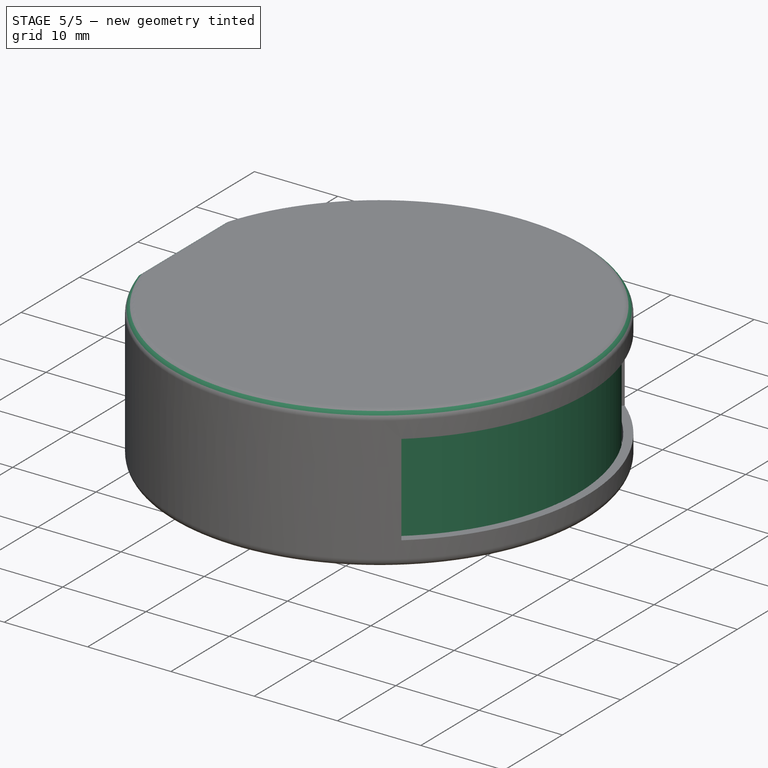
[diagram: stage 5 of 5 — iso view after this stage's code; geometry added in this stage tinted green]
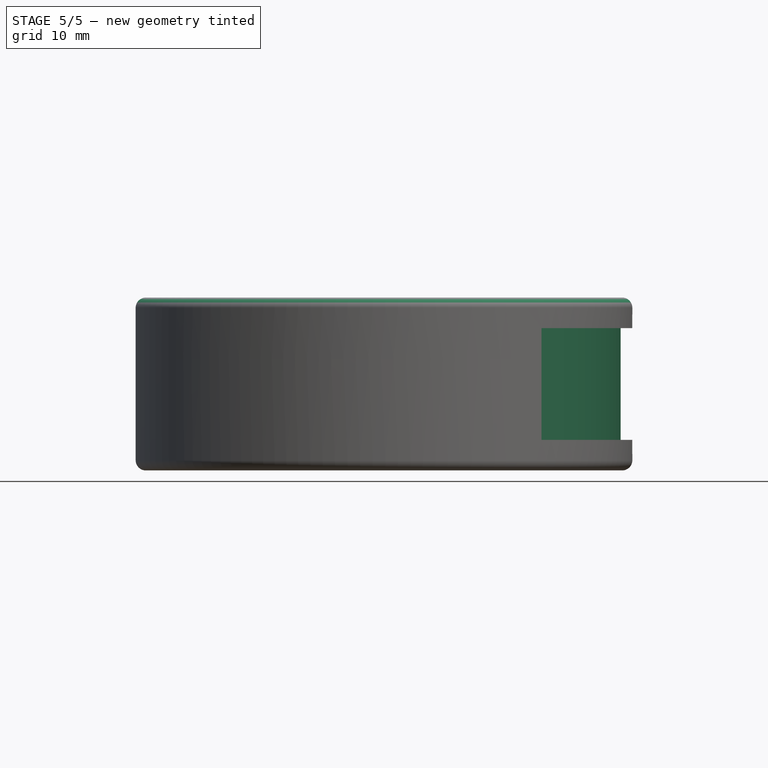
[diagram: stage 5 of 5 — front view after this stage's code; geometry added in this stage tinted green]
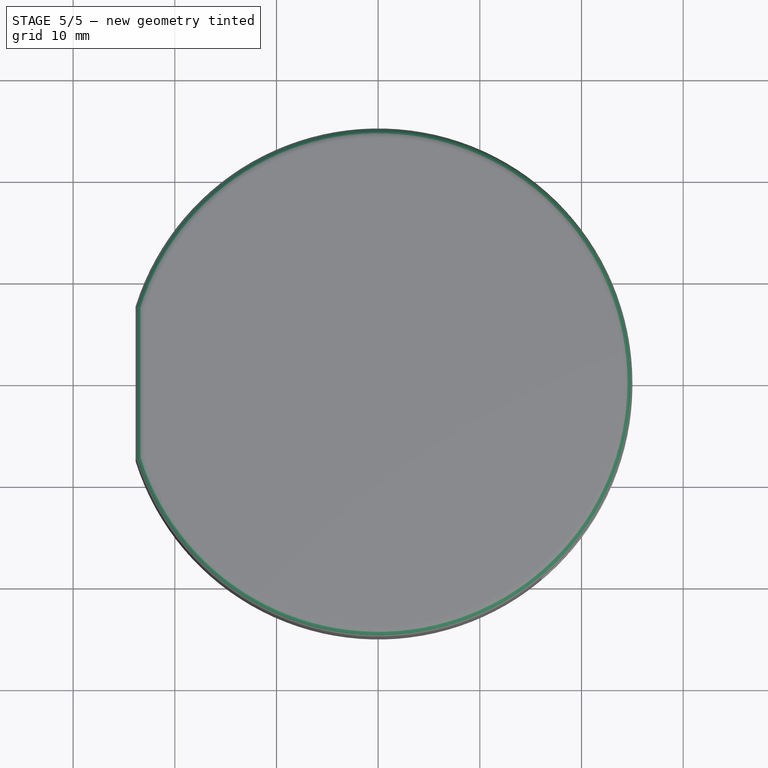
[diagram: stage 5 of 5 — top view after this stage's code; geometry added in this stage tinted green]
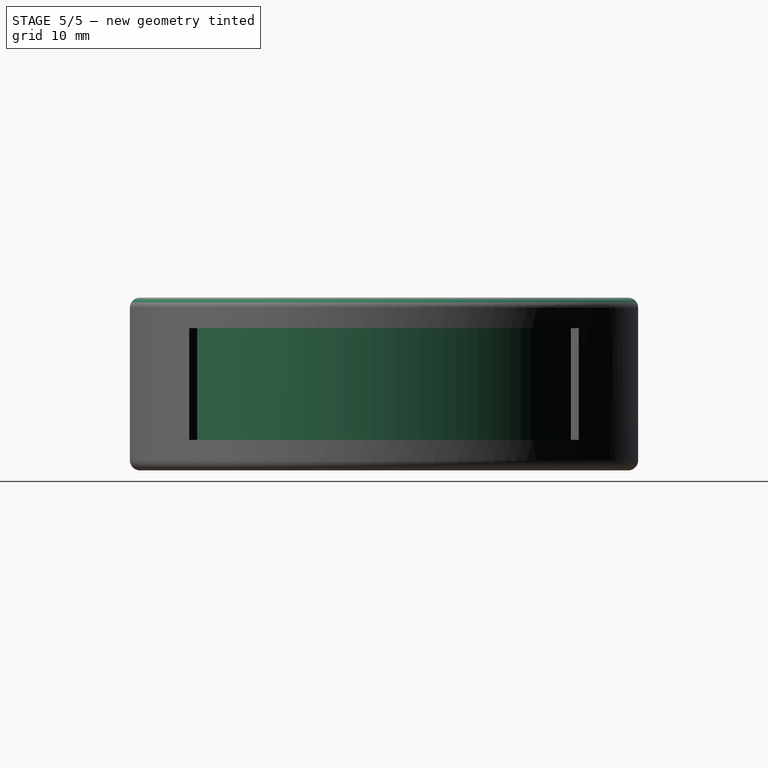
[diagram: stage 5 of 5 — right view after this stage's code; geometry added in this stage tinted green]
FEATURE [Sketcher::SketchObject] Sketch023
  Placement = pos=(0,0,0.3) rot=(0,0,1;0rad)
  expr: Constraints[15] = 23 + 1 / 2 - 0.7 / 2
  expr: Constraints[12] = 24 - 1 / 2 + 0.7 / 2
  sketch-geometry (6):
    g0: ArcOfCircle CenterX=0 CenterY=0 CenterZ=0 NormalX=0 NormalY=0 NormalZ=1 Radius=23.85 StartAngle=5.38434 EndAngle=7.18203
    g1: LineSegment [constr] StartX=14.847 StartY=18.6652 StartZ=0 EndX=0 EndY=0 EndZ=0
    g2: LineSegment [constr] StartX=14.847 StartY=-18.6652 StartZ=0 EndX=0 EndY=0 EndZ=0
    g3: ArcOfCircle CenterX=0 CenterY=0 CenterZ=0 NormalX=0 NormalY=0 NormalZ=1 Radius=23.15 StartAngle=5.38434 EndAngle=7.18203
    g4: LineSegment StartX=14.847 StartY=18.6652 StartZ=0 EndX=14.4112 EndY=18.1174 EndZ=0
    g5: LineSegment StartX=14.847 StartY=-18.6652 StartZ=0 EndX=14.4112 EndY=-18.1174 EndZ=0
  constraints (16):
    c: Coincident(g0,g-1)
    c: Coincident(g1,g0)
    c: Coincident(g1,g-1)
    c: Coincident(g2,g0)
    c: Coincident(g2,g-1)
    c: Coincident(g3,g-1)
    c: PointOnObject(g3,g1)
    c: PointOnObject(g3,g2)
    c: Coincident(g4,g0)
    c: Coincident(g4,g3)
    c: Coincident(g5,g0)
    c: Coincident(g5,g3)
    c: Radius(g0) = 23.85
    c: Symmetric(g0,g0,g-1)
    c: Angle(g-1,g1) = 0.898845
    c: Radius(g3) = 23.15
FEATURE [PartDesign::Pad] Pad016
  Length = 14.4
  Length2 = 100
  Placement = pos=(0,0,0.3) rot=(0,0,1;0rad)
  Sketch = -> Sketch023
  Type = 0
  expr: Length = 15 - 2 * 0.3
FEATURE [Sketcher::SketchObject] Sketch028
  ExternalGeometry = -> [Pocket005]
  Placement = pos=(0,0,8.5) rot=(1,0,0;3.14159rad)
  Support = -> Pocket005 [Face12]
  sketch-geometry (6):
    g0: LineSegment [constr] StartX=0 StartY=0 StartZ=0 EndX=14.7759 EndY=18.9123 EndZ=0
    g1: LineSegment [constr] StartX=0 StartY=0 StartZ=0 EndX=14.7759 EndY=-18.9123 EndZ=0
    g2: ArcOfCircle CenterX=0 CenterY=0 CenterZ=0 NormalX=0 NormalY=0 NormalZ=1 Radius=24 StartAngle=5.37561 EndAngle=7.19076
    g3: ArcOfCircle CenterX=0 CenterY=0 CenterZ=0 NormalX=0 NormalY=0 NormalZ=1 Radius=23 StartAngle=5.37561 EndAngle=7.19076
    g4: LineSegment StartX=14.7759 StartY=18.9123 StartZ=0 EndX=14.1602 EndY=18.1242 EndZ=0
    g5: LineSegment StartX=14.7759 StartY=-18.9123 StartZ=0 EndX=14.1602 EndY=-18.1242 EndZ=0
  constraints (16):
    c: Coincident(g0,g-1)
    c: PointOnObject(g0,g-3)
    c: Coincident(g1,g-1)
    c: Symmetric(g0,g1,g-1)
    c: Angle(g-1,g0) = 0.907571
    c: Coincident(g2,g-1)
    c: Coincident(g2,g0)
    c: Coincident(g2,g1)
    c: Coincident(g3,g-1)
    c: PointOnObject(g3,g0)
    c: PointOnObject(g3,g1)
    c: PointOnObject(g3,g-4)
    c: Coincident(g4,g0)
    c: Coincident(g4,g3)
    c: Coincident(g5,g1)
    c: Coincident(g5,g3)
FEATURE [PartDesign::Pocket] Pocket006
  Length = 6.5
  Sketch = -> Sketch028
  Type = 0
FEATURE [Sketcher::SketchObject] Sketch029
  ExternalGeometry = -> [Pocket006]
  Placement = pos=(0,0,15) rot=(1,0,0;3.14159rad)
  Support = -> Pocket006 [Face21]
  sketch-geometry (6):
    g0: LineSegment [constr] StartX=0 StartY=0 StartZ=0 EndX=13.5191 EndY=18.6074 EndZ=0
    g1: LineSegment [constr] StartX=0 StartY=0 StartZ=0 EndX=13.5191 EndY=-18.6074 EndZ=0
    g2: ArcOfCircle CenterX=0 CenterY=0 CenterZ=0 NormalX=0 NormalY=0 NormalZ=1 Radius=22 StartAngle=5.34071 EndAngle=7.22566
    g3: LineSegment StartX=12.9313 StartY=17.7984 StartZ=0 EndX=13.5191 EndY=18.6074 EndZ=0
    g4: ArcOfCircle CenterX=0 CenterY=0 CenterZ=0 NormalX=0 NormalY=0 NormalZ=1 Radius=23 StartAngle=5.34071 EndAngle=7.22566
    g5: LineSegment StartX=13.5191 StartY=-18.6074 StartZ=0 EndX=12.9313 EndY=-17.7984 EndZ=0
  constraints (16):
    c: Coincident(g0,g-1)
    c: PointOnObject(g0,g-3)
    c: Coincident(g1,g-1)
    c: Symmetric(g0,g1,g-1)
    c: Angle(g-1,g0) = 0.942478
    c: Coincident(g2,g-1)
    c: PointOnObject(g2,g0)
    c: PointOnObject(g2,g1)
    c: Distance(g2,g0) = 1
    c: Coincident(g3,g2)
    c: Coincident(g3,g0)
    c: Coincident(g4,g-1)
    c: Coincident(g4,g1)
    c: Coincident(g4,g0)
    c: Coincident(g5,g1)
    c: Coincident(g5,g2)
FEATURE [PartDesign::Pad] Pad020
  Length = 2
  Length2 = 100
  Sketch = -> Sketch029
  Type = 0
FEATURE [Sketcher::SketchObject] Sketch030
  ExternalGeometry = -> [Pad020]
  Placement = pos=(0,0,13) rot=(1,0,0;3.14159rad)
  Support = -> Pad020 [Face25]
  sketch-geometry (12):
    g0: LineSegment [constr] StartX=0 StartY=0 StartZ=0 EndX=13.5191 EndY=18.6074 EndZ=0
    g1: LineSegment [constr] StartX=0 StartY=0 StartZ=0 EndX=15.4269 EndY=18.3851 EndZ=0
    g2: LineSegment [constr] StartX=0 StartY=0 StartZ=0 EndX=13.5191 EndY=-18.6074 EndZ=0
    g3: LineSegment [constr] StartX=0 StartY=0 StartZ=0 EndX=15.4269 EndY=-18.3851 EndZ=0
    g4: ArcOfCircle CenterX=0 CenterY=0 CenterZ=0 NormalX=0 NormalY=0 NormalZ=1 Radius=23 StartAngle=5.34071 EndAngle=5.41052
    g5: ArcOfCircle CenterX=0 CenterY=0 CenterZ=0 NormalX=0 NormalY=0 NormalZ=1 Radius=23 StartAngle=0.872665 EndAngle=0.942478
    g6: LineSegment StartX=13.5191 StartY=18.6074 StartZ=0 EndX=12.9313 EndY=17.7984 EndZ=0
    g7: ArcOfCircle CenterX=0 CenterY=0 CenterZ=0 NormalX=0 NormalY=0 NormalZ=1 Radius=22 StartAngle=0.872665 EndAngle=0.942478
    g8: LineSegment StartX=14.7841 StartY=17.619 StartZ=0 EndX=14.1413 EndY=16.853 EndZ=0
    g9: LineSegment StartX=13.5191 StartY=-18.6074 StartZ=0 EndX=12.9313 EndY=-17.7984 EndZ=0
    g10: ArcOfCircle CenterX=0 CenterY=0 CenterZ=0 NormalX=0 NormalY=0 NormalZ=1 Radius=22 StartAngle=5.34071 EndAngle=5.41052
    g11: LineSegment StartX=14.7841 StartY=-17.619 StartZ=0 EndX=14.1413 EndY=-16.853 EndZ=0
  constraints (30):
    c: Coincident(g0,g-1)
    c: Coincident(g0,g-5)
    c: Coincident(g1,g-1)
    c: Coincident(g1,g-3)
    c: Coincident(g2,g-1)
    c: Coincident(g2,g-6)
    c: Coincident(g3,g-1)
    c: Coincident(g3,g-4)
    c: Coincident(g4,g-1)
    c: Coincident(g4,g2)
    c: PointOnObject(g4,g3)
    c: Coincident(g5,g-1)
    c: Coincident(g5,g0)
    c: PointOnObject(g5,g1)
    c: Coincident(g6,g0)
    c: Distance(g6) = 1
    c: PointOnObject(g6,g0)
    c: Coincident(g7,g-1)
    c: Coincident(g7,g6)
    c: PointOnObject(g7,g1)
    c: Coincident(g8,g5)
    c: Coincident(g8,g7)
    c: Coincident(g9,g2)
    c: Distance(g9) = 1
    c: PointOnObject(g9,g2)
    c: Coincident(g10,g-1)
    c: Coincident(g10,g9)
    c: PointOnObject(g10,g3)
    c: Coincident(g11,g4)
    c: Coincident(g11,g10)
FEATURE [PartDesign::Pad] Pad021
  Length = 4.5
  Length2 = 100
  Sketch = -> Sketch030
  Type = 0
FEATURE [Sketcher::SketchObject] Sketch031
  ExternalGeometry = -> [Pad021]
  Placement = pos=(0,0,8.5) rot=(1,0,0;3.14159rad)
  Support = -> Pad021 [Face18]
  sketch-geometry (8):
    g0: ArcOfCircle CenterX=0 CenterY=0 CenterZ=0 NormalX=0 NormalY=0 NormalZ=1 Radius=24 StartAngle=0.907571 EndAngle=2.83057
    g1: ArcOfCircle CenterX=0 CenterY=0 CenterZ=0 NormalX=0 NormalY=0 NormalZ=1 Radius=23.9048 StartAngle=0.907571 EndAngle=2.82929
    g2: LineSegment StartX=14.7759 StartY=18.9123 StartZ=0 EndX=14.7173 EndY=18.8373 EndZ=0
    g3: LineSegment StartX=-22.8485 StartY=7.34486 StartZ=0 EndX=-22.8485 EndY=-7.34486 EndZ=0
    g4: LineSegment StartX=-22.7485 StartY=7.34486 StartZ=0 EndX=-22.7485 EndY=-7.34486 EndZ=0
    g5: ArcOfCircle CenterX=0 CenterY=0 CenterZ=0 NormalX=0 NormalY=0 NormalZ=1 Radius=24 StartAngle=3.45262 EndAngle=5.37561
    g6: ArcOfCircle CenterX=0 CenterY=0 CenterZ=0 NormalX=0 NormalY=0 NormalZ=1 Radius=23.9048 StartAngle=3.4539 EndAngle=5.37561
    g7: LineSegment StartX=14.7173 StartY=-18.8373 StartZ=0 EndX=14.7759 EndY=-18.9123 EndZ=0
  constraints (22):
    c: Coincident(g0,g-1)
    c: Coincident(g0,g-3)
    c: PointOnObject(g0,g-4)
    c: Coincident(g1,g-1)
    c: PointOnObject(g1,g-3)
    c: PointOnObject(g1,g-4)
    c: Coincident(g2,g0)
    c: Coincident(g2,g1)
    c: Coincident(g3,g0)
    c: Coincident(g3,g-5)
    c: Coincident(g4,g1)
    c: PointOnObject(g4,g-5)
    c: Vertical(g4)
    c: Coincident(g5,g-1)
    c: Coincident(g5,g3)
    c: PointOnObject(g5,g-6)
    c: Coincident(g6,g-1)
    c: Coincident(g6,g4)
    c: PointOnObject(g6,g-6)
    c: Coincident(g7,g6)
    c: Coincident(g7,g5)
    c: DistanceX(g0,g1) = 0.1
FEATURE [PartDesign::Pocket] Pocket007
  Length = 1.5
  Sketch = -> Sketch031
  Type = 0
FEATURE [PartDesign::Fillet] Fillet002
  Base = -> Pocket007 [Edge4,Edge10]
  Radius = 1
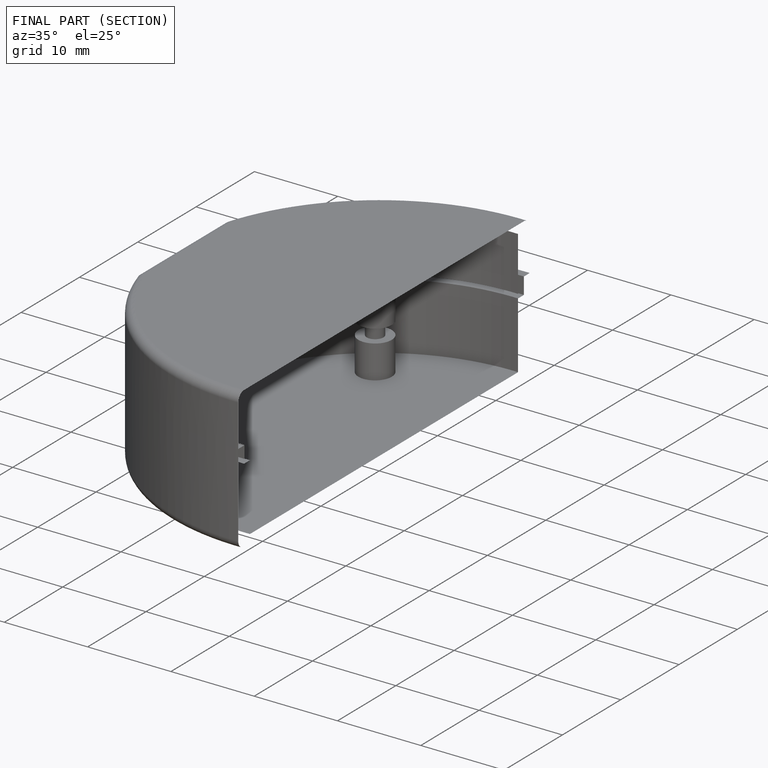
[diagram: finished part — half-section view (interior)]
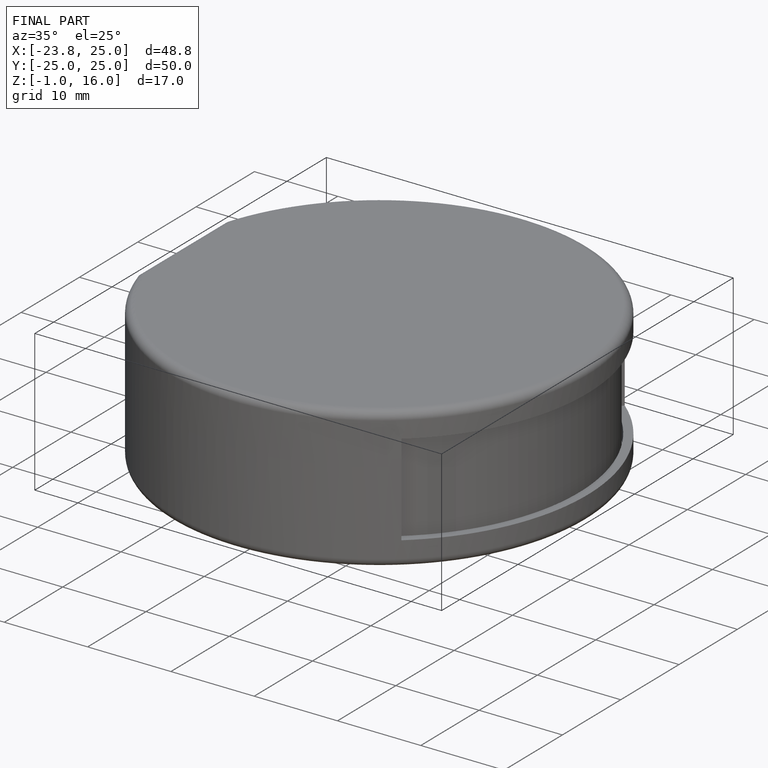
[diagram: finished part — iso view with bounding-box wireframe]
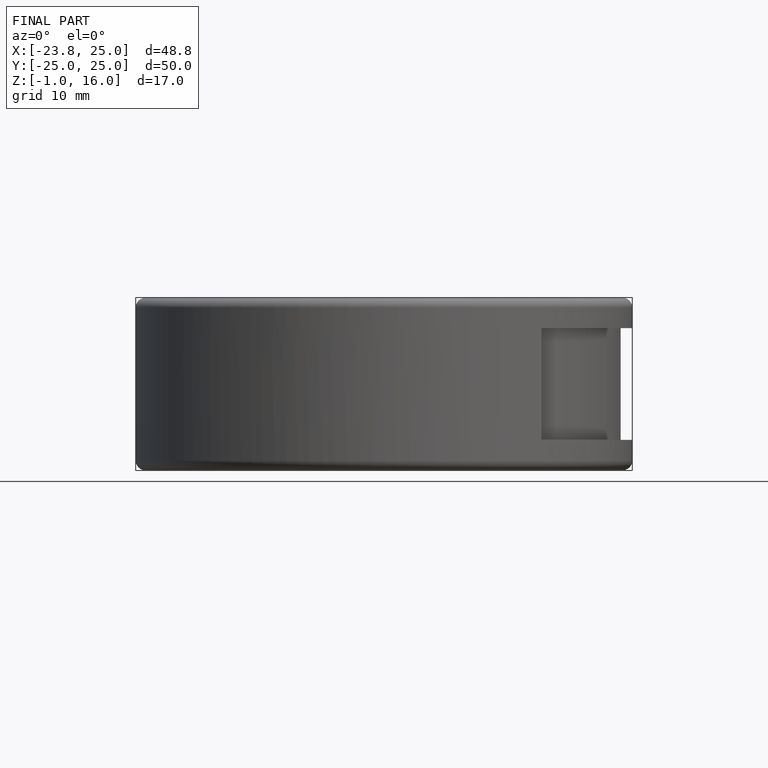
[diagram: finished part — front view with bounding-box wireframe]
